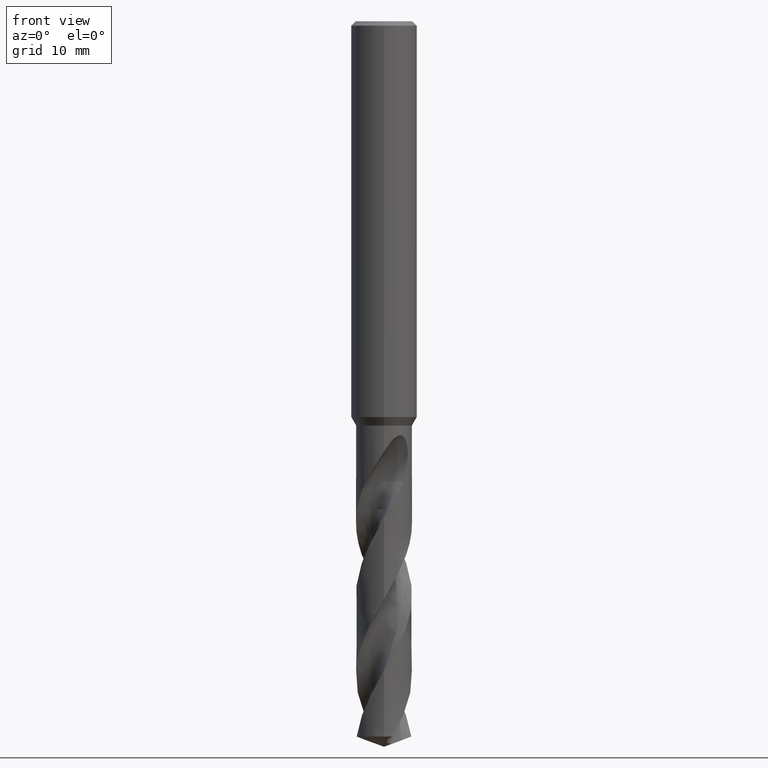
[diagram: clean part render]
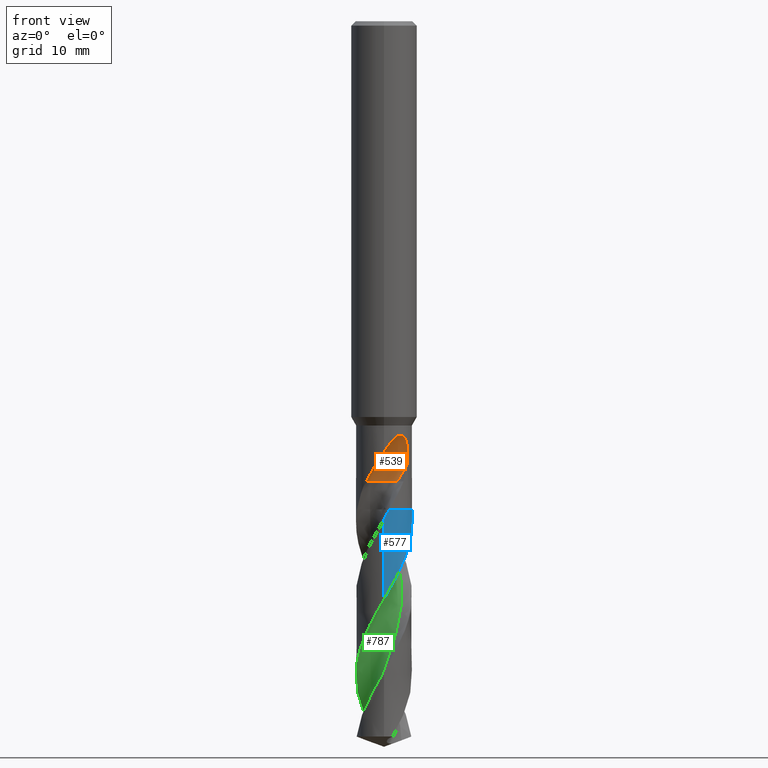
[diagram: same view with three faces highlighted in distinct colors, each labeled with its STEP entity id]
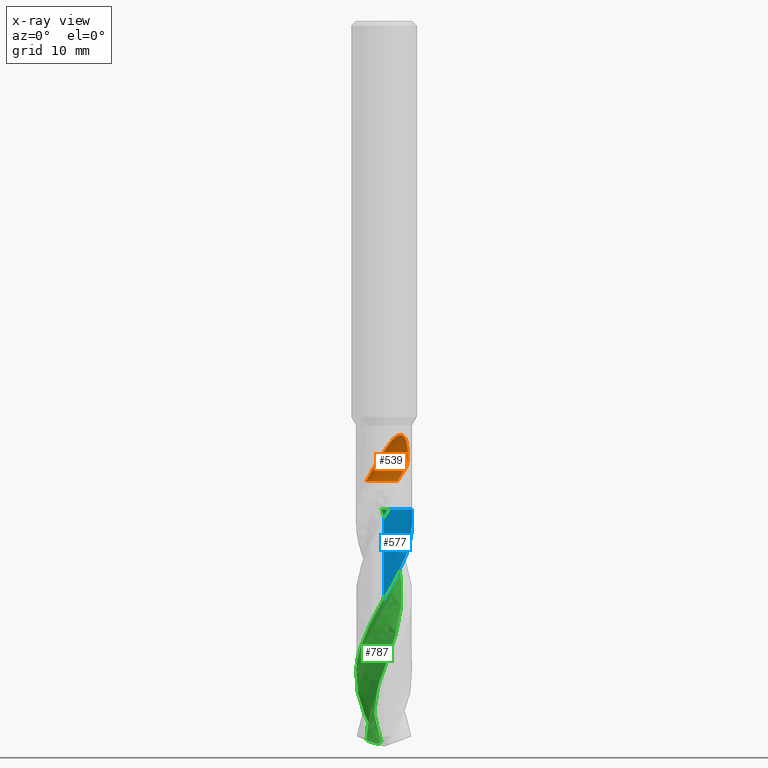
[diagram: x-ray of the same camera — body ghosted, the three highlighted faces saturated]
A machine part, front view with three faces highlighted in distinct colors.
The next image is the same camera in x-ray (body ghosted, the three faces saturated) — at least one of them is partly hidden behind the body in this view.
Their STEP definitions:

[orange] entity #539 — the highlighted face is a SurfaceOfRevolution surface.
#367=VERTEX_POINT('',#895);
#455=EDGE_CURVE('',#599,#635,#992,.T.);
#539=ADVANCED_FACE('',(#1085),#1086,.F.);
#565=EDGE_CURVE('',#367,#635,#1113,.T.);
#569=EDGE_CURVE('',#665,#599,#1118,.T.);
#599=VERTEX_POINT('',#1152);
#635=VERTEX_POINT('',#1193);
#659=EDGE_CURVE('',#763,#367,#1221,.T.);
#665=VERTEX_POINT('',#1227);
#761=EDGE_CURVE('',#763,#665,#1329,.T.);
#763=VERTEX_POINT('',#1331);
#895=CARTESIAN_POINT('',(7.56884150894619E-013,-2.55,-39.15000204322));
#992=CIRCLE('',#3668,11.0804127453489);
#1085=FACE_OUTER_BOUND('',#4221,.T.);
#1086=SURFACE_OF_REVOLUTION('',#4222,#4223);
#1113=B_SPLINE_CURVE_WITH_KNOTS('',3,(#4283,#4284,#4285,#4286,#4287,#4288,#4289,#4290,#4291,#4292,#4293,#4294,#4295,#4296,#4297,#4298,#4299,#4300,#4301,#4302,#4303,#4304,#4305,#4306,#4307,#4308,#4309,#4310),.UNSPECIFIED.,.F.,.F.,(4,2,2,2,2,2,2,2,2,2,2,2,2,4),(0.0,1.2493596128504,1.93153835635049,2.54942075450013,3.26725165442554,4.12953051732324,4.87688242765241,5.21555645378228,5.46308588244491,5.69732111728535,5.99446247790975,6.42919234259777,7.04721195838125,7.74999240025269),.UNSPECIFIED.);
#1118=CIRCLE('',#4316,1.7);
#1152=CARTESIAN_POINT('',(1.20208152794642,-1.26291847205358,-41.8606));
#1193=CARTESIAN_POINT('',(2.07478751640229,-1.48248330910713,-40.4642704184706));
#1221=B_SPLINE_CURVE_WITH_KNOTS('',3,(#5711,#5712,#5713,#5714,#5715,#5716,#5717,#5718,#5719,#5720,#5721,#5722,#5723,#5724,#5725,#5726,#5727,#5728,#5729,#5730,#5731,#5732,#5733,#5734,#5735,#5736,#5737,#5738),.UNSPECIFIED.,.F.,.F.,(4,2,2,2,2,2,2,2,2,2,2,2,2,4),(0.0,1.2493596128504,1.93153835635049,2.54942075450013,3.26725165442554,4.12953051732324,4.87688242765241,5.21555645378228,5.46308588244491,5.69732111728535,5.99446247790975,6.42919234259777,7.04721195838125,7.74999240025269),.UNSPECIFIED.);
#1227=CARTESIAN_POINT('',(0.269409738912672,-0.786472330421527,-41.8606));
#1329=CIRCLE('',#6816,1.7);
#1331=CARTESIAN_POINT('',(-1.62490083550806,-1.96524738258704,-41.8606));
#3668=AXIS2_PLACEMENT_3D('',#7456,#7457,#7458);
#4221=EDGE_LOOP('',(#7556,#7557,#7558,#7559,#7560));
#4222=(B_SPLINE_CURVE(3,(#7562,#7563,#7564,#7565,#7566,#7567,#7568,#7569,#7570),.UNSPECIFIED.,.F.,.F.)B_SPLINE_CURVE_WITH_KNOTS((4,1,3,1,4),(-2.85587209839975,-2.55247693377613,-2.24908176915251,-1.94568660452889,-1.64229143990528),.UNSPECIFIED.)RATIONAL_B_SPLINE_CURVE((1.09204862591699,1.03068287530566,0.969317124694336,1.03068287530566,1.09204862591699,1.03068287530566,0.969317124694336,1.03068287530566,1.09204862591699))BOUNDED_CURVE()REPRESENTATION_ITEM('')GEOMETRIC_REPRESENTATION_ITEM()CURVE());
#4223=AXIS1_PLACEMENT('',#7577,#7578);
#4283=CARTESIAN_POINT('',(-1.62490083550806,-1.96524738258704,-41.8606));
#4284=CARTESIAN_POINT('',(-1.45669338031003,-2.10432424227997,-41.505921060011));
#4285=CARTESIAN_POINT('',(-1.26329282268803,-2.22795392363681,-41.1752460080513));
#4286=CARTESIAN_POINT('',(-0.926059863963459,-2.3794879783411,-40.6228305933092));
#4287=CARTESIAN_POINT('',(-0.804707708838678,-2.4230785591664,-40.4284724289745));
#4288=CARTESIAN_POINT('',(-0.569785261369414,-2.4882262006282,-40.0522453289005));
#4289=CARTESIAN_POINT('',(-0.457263904156239,-2.5112427100234,-39.8721300689186));
#4290=CARTESIAN_POINT('',(-0.213702551379134,-2.5444612321252,-39.4839337875907));
#4291=CARTESIAN_POINT('',(-0.0806280975477646,-2.55226003480915,-39.2728141637524));
#4292=CARTESIAN_POINT('',(0.214896144172133,-2.54604382693197,-38.8211596554812));
#4293=CARTESIAN_POINT('',(0.390112134702442,-2.52681712314373,-38.5641633105317));
#4294=CARTESIAN_POINT('',(0.727993527751662,-2.44917046311251,-38.1403940501317));
#4295=CARTESIAN_POINT('',(0.914929811528088,-2.39001349986102,-37.9336112017254));
#4296=CARTESIAN_POINT('',(1.19785599497992,-2.25327402243575,-37.7399799554091));
#4297=CARTESIAN_POINT('',(1.29150639456485,-2.20165174678138,-37.6921259434389));
#4298=CARTESIAN_POINT('',(1.45560342999809,-2.09536020524699,-37.6553654798896));
#4299=CARTESIAN_POINT('',(1.52290884093069,-2.04695423733335,-37.6546790722435));
#4300=CARTESIAN_POINT('',(1.64826880519651,-1.94724804510427,-37.6868521317766));
#4301=CARTESIAN_POINT('',(1.70309499902958,-1.8990919432696,-37.7170172338095));
#4302=CARTESIAN_POINT('',(1.81466569523409,-1.7935616050469,-37.8114003700712));
#4303=CARTESIAN_POINT('',(1.86628334890514,-1.73887313285198,-37.8810853385635));
#4304=CARTESIAN_POINT('',(1.97201299416678,-1.61945684737322,-38.0719044253324));
#4305=CARTESIAN_POINT('',(2.0225496571708,-1.55442613573115,-38.213435799693));
#4306=CARTESIAN_POINT('',(2.11758198328291,-1.42384528135442,-38.6094248392793));
#4307=CARTESIAN_POINT('',(2.15193836814655,-1.3682241127332,-38.891442921608));
#4308=CARTESIAN_POINT('',(2.17390554000001,-1.33308696786573,-39.5656944377645));
#4309=CARTESIAN_POINT('',(2.15834036234748,-1.36554816342149,-39.9890449633595));
#4310=CARTESIAN_POINT('',(2.07478751640229,-1.48248330910713,-40.4642704184706));
#4316=AXIS2_PLACEMENT_3D('',#7618,#7619,#7620);
#5711=CARTESIAN_POINT('',(-1.62490083550806,-1.96524738258704,-41.8606));
#5712=CARTESIAN_POINT('',(-1.45669338031003,-2.10432424227997,-41.505921060011));
#5713=CARTESIAN_POINT('',(-1.26329282268803,-2.22795392363681,-41.1752460080513));
#5714=CARTESIAN_POINT('',(-0.926059863963459,-2.3794879783411,-40.6228305933092));
#5715=CARTESIAN_POINT('',(-0.804707708838678,-2.4230785591664,-40.4284724289745));
#5716=CARTESIAN_POINT('',(-0.569785261369414,-2.4882262006282,-40.0522453289005));
#5717=CARTESIAN_POINT('',(-0.457263904156239,-2.5112427100234,-39.8721300689186));
#5718=CARTESIAN_POINT('',(-0.213702551379134,-2.5444612321252,-39.4839337875907));
#5719=CARTESIAN_POINT('',(-0.0806280975477646,-2.55226003480915,-39.2728141637524));
#5720=CARTESIAN_POINT('',(0.214896144172133,-2.54604382693197,-38.8211596554812));
#5721=CARTESIAN_POINT('',(0.390112134702442,-2.52681712314373,-38.5641633105317));
#5722=CARTESIAN_POINT('',(0.727993527751662,-2.44917046311251,-38.1403940501317));
#5723=CARTESIAN_POINT('',(0.914929811528088,-2.39001349986102,-37.9336112017254));
#5724=CARTESIAN_POINT('',(1.19785599497992,-2.25327402243575,-37.7399799554091));
#5725=CARTESIAN_POINT('',(1.29150639456485,-2.20165174678138,-37.6921259434389));
#5726=CARTESIAN_POINT('',(1.45560342999809,-2.09536020524699,-37.6553654798896));
#5727=CARTESIAN_POINT('',(1.52290884093069,-2.04695423733335,-37.6546790722435));
#5728=CARTESIAN_POINT('',(1.64826880519651,-1.94724804510427,-37.6868521317766));
#5729=CARTESIAN_POINT('',(1.70309499902958,-1.8990919432696,-37.7170172338095));
#5730=CARTESIAN_POINT('',(1.81466569523409,-1.7935616050469,-37.8114003700712));
#5731=CARTESIAN_POINT('',(1.86628334890514,-1.73887313285198,-37.8810853385635));
#5732=CARTESIAN_POINT('',(1.97201299416678,-1.61945684737322,-38.0719044253324));
#5733=CARTESIAN_POINT('',(2.0225496571708,-1.55442613573115,-38.213435799693));
#5734=CARTESIAN_POINT('',(2.11758198328291,-1.42384528135442,-38.6094248392793));
#5735=CARTESIAN_POINT('',(2.15193836814655,-1.3682241127332,-38.891442921608));
#5736=CARTESIAN_POINT('',(2.17390554000001,-1.33308696786573,-39.5656944377645));
#5737=CARTESIAN_POINT('',(2.15834036234748,-1.36554816342149,-39.9890449633595));
#5738=CARTESIAN_POINT('',(2.07478751640229,-1.48248330910713,-40.4642704184706));
#6816=AXIS2_PLACEMENT_3D('',#7819,#7820,#7821);
#7456=CARTESIAN_POINT('',(0.864418177399673,-12.325,-42.4008613608748));
#7457=DIRECTION('',(0.847998304005088,0.0,-0.52999894000318));
#7458=DIRECTION('',(0.0535598122533608,0.994880693138896,0.0856956996053773));
#7556=ORIENTED_EDGE('',*,*,#659,.F.);
#7557=ORIENTED_EDGE('',*,*,#761,.T.);
#7558=ORIENTED_EDGE('',*,*,#569,.T.);
#7559=ORIENTED_EDGE('',*,*,#455,.T.);
#7560=ORIENTED_EDGE('',*,*,#565,.F.);
#7562=CARTESIAN_POINT('',(1.20208152794642,-1.26291847205358,-41.8606));
#7563=CARTESIAN_POINT('',(0.966185000177541,-1.02701682691481,-41.8606));
#7564=CARTESIAN_POINT('',(0.352498720875007,-0.692068478712858,-41.8606));
#7565=CARTESIAN_POINT('',(-0.342641017172516,-0.766781194863622,-41.8606));
#7566=CARTESIAN_POINT('',(-0.650836736161752,-0.894500248999258,-41.8606));
#7567=CARTESIAN_POINT('',(-0.959032455150988,-1.02221930313489,-41.8606));
#7568=CARTESIAN_POINT('',(-1.50325402054367,-1.46110896253569,-41.8606));
#7569=CARTESIAN_POINT('',(-1.70012780504999,-2.13196062895797,-41.8606));
#7570=CARTESIAN_POINT('',(-1.70001293763561,-2.46557229661675,-41.8606));
#7577=CARTESIAN_POINT('',(0.864418177399672,-12.325,-42.4008613608748));
#7578=DIRECTION('',(-0.847998304005088,0.0,0.52999894000318));
#7618=CARTESIAN_POINT('',(-1.30384053492459E-005,-2.46498696159465,-41.8606));
#7619=DIRECTION('',(-0.0,0.0,-1.0));
#7620=DIRECTION('',(-0.707099111494748,-0.707114450795158,0.0));
#7819=CARTESIAN_POINT('',(-1.30384053492459E-005,-2.46498696159465,-41.8606));
#7820=DIRECTION('',(-0.0,0.0,-1.0));
#7821=DIRECTION('',(-0.707099111494748,-0.707114450795158,0.0));

[blue] entity #577 — the highlighted conical surface has half-angle 0 deg.
#289=EDGE_CURVE('',#639,#779,#812,.T.);
#291=EDGE_CURVE('',#299,#317,#814,.T.);
#299=VERTEX_POINT('',#823);
#317=VERTEX_POINT('',#843);
#325=VERTEX_POINT('',#851);
#417=EDGE_CURVE('',#779,#679,#952,.T.);
#547=EDGE_CURVE('',#325,#679,#1094,.T.);
#577=ADVANCED_FACE('',(#1127),#1128,.T.);
#581=EDGE_CURVE('',#325,#299,#1133,.T.);
#591=EDGE_CURVE('',#317,#639,#1144,.T.);
#639=VERTEX_POINT('',#1197);
#679=VERTEX_POINT('',#1242);
#779=VERTEX_POINT('',#1348);
#812=B_SPLINE_CURVE_WITH_KNOTS('',3,(#1438,#1439,#1440,#1441),.UNSPECIFIED.,.F.,.F.,(4,4),(0.0,0.00790820010640688),.UNSPECIFIED.);
#814=B_SPLINE_CURVE_WITH_KNOTS('',3,(#1444,#1445,#1446,#1447),.UNSPECIFIED.,.F.,.F.,(4,4),(0.0,0.00897765199769266),.UNSPECIFIED.);
#823=CARTESIAN_POINT('',(2.45163694437292,0.701046672574818,-44.405));
#843=CARTESIAN_POINT('',(2.45083913037174,0.703830638036362,-44.4));
#851=CARTESIAN_POINT('',(-9.69274205119329E-011,-2.54993953751047,-52.5731450984842));
#952=B_SPLINE_CURVE_WITH_KNOTS('',3,(#3448,#3449,#3450,#3451,#3452,#3453,#3454,#3455,#3456,#3457,#3458,#3459,#3460,#3461,#3462,#3463,#3464,#3465,#3466,#3467,#3468,#3469,#3470,#3471,#3472,#3473,#3474,#3475,#3476,#3477,#3478,#3479,#3480,#3481,#3482,#3483,#3484,#3485,#3486,#3487,#3488,#3489,#3490,#3491,#3492,#3493,#3494,#3495,#3496,#3497,#3498,#3499,#3500,#3501,#3502,#3503,#3504,#3505),.UNSPECIFIED.,.F.,.F.,(4,2,2,2,2,2,2,2,2,2,2,2,2,2,2,2,2,2,2,2,2,2,2,2,2,2,2,2,4),(0.0,0.904595376413873,1.93838786452814,2.92163758847791,3.91194730893933,4.15071126309397,5.01063530921165,5.50711745622402,5.99645655956475,6.97608884762099,7.96485159785986,8.95029012703213,9.44091576661419,10.4734855355496,11.46155835114,12.4470108962846,12.9372804733509,13.9071458147678,14.8969134456873,15.8810176148369,16.8602019875054,17.7334736813849,18.1138178259916,19.5373381390503,20.0747924208409,21.0211814781129,21.7329142798097,22.7997396180121,23.8685175775835),.UNSPECIFIED.);
#1094=LINE('',#4254,#4255);
#1127=FACE_OUTER_BOUND('',#4327,.T.);
#1128=CONICAL_SURFACE('',#4328,2.54995,4.83749034052352E-006);
#1133=B_SPLINE_CURVE_WITH_KNOTS('',3,(#4334,#4335,#4336,#4337,#4338,#4339,#4340,#4341,#4342,#4343,#4344,#4345,#4346,#4347,#4348,#4349,#4350,#4351,#4352,#4353,#4354,#4355,#4356,#4357,#4358,#4359,#4360,#4361,#4362,#4363,#4364,#4365,#4366,#4367,#4368,#4369,#4370,#4371,#4372,#4373,#4374,#4375,#4376,#4377,#4378,#4379,#4380,#4381,#4382,#4383,#4384,#4385,#4386,#4387,#4388,#4389,#4390,#4391,#4392,#4393,#4394,#4395,#4396,#4397,#4398,#4399,#4400,#4401),.UNSPECIFIED.,.F.,.F.,(4,2,2,2,2,2,2,2,2,2,2,2,2,2,2,2,2,2,2,2,2,2,2,2,2,2,2,2,2,2,2,2,2,4),(0.0,0.973739436017821,2.32965119995241,2.54896821638103,4.15997327652881,4.19445713652408,5.06440210691963,5.50173351088864,6.37226912712226,7.24602667241369,7.95597861365113,8.83780110771078,9.20759198545636,9.70234542954898,10.5785328542333,11.4523910865963,12.3267805413204,13.2016514886626,14.077007179959,14.9529442700812,15.8293056978267,16.2683457697776,16.7039123791458,17.5798463122624,17.9819839106962,18.3572622239712,19.6511991951263,20.1965138166835,21.1555557530387,21.5151404272408,21.8294000183997,22.9342244846882,23.2096626156101,24.0334358124483),.UNSPECIFIED.);
#1144=CIRCLE('',#4869,2.5499);
#1197=CARTESIAN_POINT('',(0.494733133515938,-2.50144540947859,-44.4));
#1242=CARTESIAN_POINT('',(-9.61340102567172E-015,-2.54990417075244,-45.2621727685656));
#1348=CARTESIAN_POINT('',(0.491895978307675,-2.50200489206218,-44.4049999999999));
#1438=CARTESIAN_POINT('',(0.494733133515914,-2.50144540947861,-44.4));
#1439=CARTESIAN_POINT('',(0.493438454803094,-2.50170148086902,-44.402281903182));
#1440=CARTESIAN_POINT('',(0.492143578527356,-2.50195654687773,-44.404563806254));
#1441=CARTESIAN_POINT('',(0.490848505880163,-2.5022106072752,-44.4068457106341));
#1444=CARTESIAN_POINT('',(2.45207731946008,0.699504839900992,-44.4077686922695));
#1445=CARTESIAN_POINT('',(2.45166589178215,0.700947032258717,-44.4051790652776));
#1446=CARTESIAN_POINT('',(2.45125316212047,0.702388965545384,-44.4025895014555));
#1447=CARTESIAN_POINT('',(2.45083913037175,0.703830638036361,-44.4));
#3448=CARTESIAN_POINT('',(0.492301017395344,-2.50192522350578,-44.4042862558919));
#3449=CARTESIAN_POINT('',(0.344178322945214,-2.53107244669465,-44.6653064245363));
#3450=CARTESIAN_POINT('',(0.193929190380487,-2.5469757588407,-44.925824106508));
#3451=CARTESIAN_POINT('',(-0.128809494820265,-2.55246164496665,-45.4855873433756));
#3452=CARTESIAN_POINT('',(-0.30092794289411,-2.53795103824878,-45.7835310996031));
#3453=CARTESIAN_POINT('',(-0.631566782069647,-2.47589478541825,-46.3657358487592));
#3454=CARTESIAN_POINT('',(-0.789402950170166,-2.43017478560221,-46.6487402690111));
#3455=CARTESIAN_POINT('',(-1.09511162155849,-2.30868755433766,-47.218550773501));
#3456=CARTESIAN_POINT('',(-1.24227180941462,-2.23295870224512,-47.5037021797873));
#3457=CARTESIAN_POINT('',(-1.41458084201294,-2.12193826049186,-47.8584916154735));
#3458=CARTESIAN_POINT('',(-1.44753524434239,-2.09959594200604,-47.9273872511195));
#3459=CARTESIAN_POINT('',(-1.59669145628818,-1.9932918928437,-48.2446156116848));
#3460=CARTESIAN_POINT('',(-1.70621966216789,-1.90038429745669,-48.4927746103865));
#3461=CARTESIAN_POINT('',(-1.86574891243506,-1.74009581570366,-48.8844404323146));
#3462=CARTESIAN_POINT('',(-1.92126584662551,-1.67860100321907,-49.027680203242));
#3463=CARTESIAN_POINT('',(-2.0253915703389,-1.55131035799842,-49.3122825774456));
#3464=CARTESIAN_POINT('',(-2.07399443735755,-1.48570442363129,-49.4533816974097));
#3465=CARTESIAN_POINT('',(-2.21017931767544,-1.28214975318076,-49.8775933406426));
#3466=CARTESIAN_POINT('',(-2.28777049425431,-1.13795339585544,-50.1601237703828));
#3467=CARTESIAN_POINT('',(-2.41489551606074,-0.835239756758642,-50.7285202114503));
#3468=CARTESIAN_POINT('',(-2.46382894752502,-0.677395752658592,-51.0130907454363));
#3469=CARTESIAN_POINT('',(-2.53042245195366,-0.355122543059434,-51.5833067171389));
#3470=CARTESIAN_POINT('',(-2.54805651413339,-0.191347090399088,-51.8673099812889));
#3471=CARTESIAN_POINT('',(-2.55066076766428,0.0549086144958673,-52.2935231662921));
#3472=CARTESIAN_POINT('',(-2.54758460164812,0.136729119558556,-52.4350098178223));
#3473=CARTESIAN_POINT('',(-2.52584666762202,0.389804171668897,-52.8749414638961));
#3474=CARTESIAN_POINT('',(-2.49376578920328,0.559476491110245,-53.1727591732744));
#3475=CARTESIAN_POINT('',(-2.39796984435706,0.882685824834005,-53.7563394131764));
#3476=CARTESIAN_POINT('',(-2.33592839294119,1.03576208498919,-54.0407681854939));
#3477=CARTESIAN_POINT('',(-2.18344771171825,1.32732474259901,-54.6108889734833));
#3478=CARTESIAN_POINT('',(-2.09338114867479,1.46528014612376,-54.89493922413));
#3479=CARTESIAN_POINT('',(-1.93947981510207,1.65751942507556,-55.3211283474987));
#3480=CARTESIAN_POINT('',(-1.88532356191326,1.71886712620112,-55.4625400107683));
#3481=CARTESIAN_POINT('',(-1.71556941141989,1.89347844928116,-55.8843383954801));
#3482=CARTESIAN_POINT('',(-1.59200499273304,1.99849605400999,-56.164185882007));
#3483=CARTESIAN_POINT('',(-1.32387878641337,2.1856145680911,-56.7302550024671));
#3484=CARTESIAN_POINT('',(-1.17963603406594,2.26671592456579,-57.0151565522202));
#3485=CARTESIAN_POINT('',(-0.878452191238855,2.39949311697181,-57.5854705792976));
#3486=CARTESIAN_POINT('',(-0.722185425608949,2.45107062282796,-57.8692262719795));
#3487=CARTESIAN_POINT('',(-0.402572092098124,2.52328746594555,-58.4363317217144));
#3488=CARTESIAN_POINT('',(-0.240135043613622,2.5438833046822,-58.7185416060254));
#3489=CARTESIAN_POINT('',(0.0686434851790894,2.55320429856699,-59.2537894913909));
#3490=CARTESIAN_POINT('',(0.214377174217329,2.54512273047864,-59.5055917837756));
#3491=CARTESIAN_POINT('',(0.421534609977658,2.51569278047497,-59.8677009003464));
#3492=CARTESIAN_POINT('',(0.484012710504189,2.5044225962746,-59.9774672998032));
#3493=CARTESIAN_POINT('',(0.777982362528576,2.4399864638977,-60.49863364321));
#3494=CARTESIAN_POINT('',(1.00183297143736,2.35694838820673,-60.9084320010982));
#3495=CARTESIAN_POINT('',(1.28993890916687,2.20148121877151,-61.4749446306497));
#3496=CARTESIAN_POINT('',(1.36655725322697,2.15475569094775,-61.6300776653679));
#3497=CARTESIAN_POINT('',(1.57077515761114,2.01494596843945,-62.0589126377077));
#3498=CARTESIAN_POINT('',(1.69251092623528,1.91384153165527,-62.3319952396799));
#3499=CARTESIAN_POINT('',(1.88809131080235,1.71804155920873,-62.8111096431041));
#3500=CARTESIAN_POINT('',(1.96605529019701,1.62824461196166,-63.0163696958586));
#3501=CARTESIAN_POINT('',(2.14451497099304,1.39111715504038,-63.5303372863692));
#3502=CARTESIAN_POINT('',(2.23641709925202,1.23800223535392,-63.8378221862678));
#3503=CARTESIAN_POINT('',(2.38698107870052,0.914693297158209,-64.4548072614514));
#3504=CARTESIAN_POINT('',(2.44503618066964,0.745639627752323,-64.7628269882179));
#3505=CARTESIAN_POINT('',(2.48497970854248,0.572167674840251,-65.0718759026212));
#4254=CARTESIAN_POINT('',(3.13128794338096E-016,-2.54995,-54.7359379513106));
#4255=VECTOR('',#7579,1.0);
#4327=EDGE_LOOP('',(#7632,#7633,#7634,#7635,#7636,#7637));
#4328=AXIS2_PLACEMENT_3D('',#7638,#7639,#7640);
#4334=CARTESIAN_POINT('',(-0.781501621102612,2.42729380508705,-65.0718759026212));
#4335=CARTESIAN_POINT('',(-0.936654392305266,2.37733874633834,-64.7911907336946));
#4336=CARTESIAN_POINT('',(-1.08586653742181,2.31286871901481,-64.5083894878592));
#4337=CARTESIAN_POINT('',(-1.42391276727802,2.12728008139623,-63.8378065476343));
#4338=CARTESIAN_POINT('',(-1.60559432741941,1.99374198289367,-63.4529806769284));
#4339=CARTESIAN_POINT('',(-1.79373256505203,1.81281357722008,-63.0000320584943));
#4340=CARTESIAN_POINT('',(-1.81936453293249,1.78708784910183,-62.9369175222683));
#4341=CARTESIAN_POINT('',(-2.02896410744252,1.56752095492426,-62.4103172327299));
#4342=CARTESIAN_POINT('',(-2.18167503455075,1.3467563916689,-61.9548301492949));
#4343=CARTESIAN_POINT('',(-2.29981489373464,1.10149689923148,-61.4813319115324));
#4344=CARTESIAN_POINT('',(-2.30227058607833,1.09635484919248,-61.4714174525299));
#4345=CARTESIAN_POINT('',(-2.36638432647568,0.960936731697231,-61.2108325038003));
#4346=CARTESIAN_POINT('',(-2.41704031574375,0.825398705664276,-60.9615636863699));
#4347=CARTESIAN_POINT('',(-2.47557164802547,0.615819311843449,-60.5856044840309));
#4348=CARTESIAN_POINT('',(-2.49213039673548,0.544939918736955,-60.4599856520481));
#4349=CARTESIAN_POINT('',(-2.53250632546693,0.331267825005691,-60.0837191816829));
#4350=CARTESIAN_POINT('',(-2.54720835459705,0.187164163519624,-59.8322542288498));
#4351=CARTESIAN_POINT('',(-2.55203866507148,-0.102675763141762,-59.3304323985694));
#4352=CARTESIAN_POINT('',(-2.54205345356387,-0.247812119878028,-59.0804177029887));
#4353=CARTESIAN_POINT('',(-2.50165166158307,-0.507943367635334,-58.6248984175793));
#4354=CARTESIAN_POINT('',(-2.47549801354681,-0.622984790247666,-58.4199467108777));
#4355=CARTESIAN_POINT('',(-2.39932539744199,-0.875758096959759,-57.9622462134025));
#4356=CARTESIAN_POINT('',(-2.34512000472608,-1.0120316625414,-57.7101082801246));
#4357=CARTESIAN_POINT('',(-2.25187744696738,-1.19797093591371,-57.350538606899));
#4358=CARTESIAN_POINT('',(-2.22238341178183,-1.25183003119497,-57.2443713760112));
#4359=CARTESIAN_POINT('',(-2.14904672411644,-1.375001363626,-56.9958096555491));
#4360=CARTESIAN_POINT('',(-2.10375277936725,-1.44334854502031,-56.8531731426846));
#4361=CARTESIAN_POINT('',(-1.96915065311081,-1.62660737946356,-56.4589526090076));
#4362=CARTESIAN_POINT('',(-1.87318877868513,-1.73627540845624,-56.2083955010079));
#4363=CARTESIAN_POINT('',(-1.66361596880539,-1.9379745606551,-55.7056179688633));
#4364=CARTESIAN_POINT('',(-1.55068972973189,-2.02942912840731,-55.453732269428));
#4365=CARTESIAN_POINT('',(-1.31095462447957,-2.19194714773937,-54.9515789842074));
#4366=CARTESIAN_POINT('',(-1.18422788532857,-2.26294523468633,-54.7018090554772));
#4367=CARTESIAN_POINT('',(-0.919684266025417,-2.38275229518567,-54.1998214906068));
#4368=CARTESIAN_POINT('',(-0.782670323979267,-2.43117435378045,-53.9479328239939));
#4369=CARTESIAN_POINT('',(-0.502411806994512,-2.50415151123396,-53.4457848660414));
#4370=CARTESIAN_POINT('',(-0.359250356426526,-2.52867882239983,-53.196024708717));
#4371=CARTESIAN_POINT('',(-0.069871204089842,-2.55311790455676,-52.6940382171899));
#4372=CARTESIAN_POINT('',(0.0754590549387512,-2.55292987479412,-52.442147068802));
#4373=CARTESIAN_POINT('',(0.363980128410971,-2.52797772966208,-51.939997544937));
#4374=CARTESIAN_POINT('',(0.50709682079875,-2.50321652420232,-51.6902459198908));
#4375=CARTESIAN_POINT('',(0.71783162379828,-2.44789023171812,-51.313654104828));
#4376=CARTESIAN_POINT('',(0.787247947217329,-2.42644944283227,-51.1880811899281));
#4377=CARTESIAN_POINT('',(0.923334248698002,-2.37797834956189,-50.9374515638668));
#4378=CARTESIAN_POINT('',(0.990000091732948,-2.35100711903106,-50.8123405148182));
#4379=CARTESIAN_POINT('',(1.18739257366965,-2.2612414492276,-50.4363236776969));
#4380=CARTESIAN_POINT('',(1.31401687142072,-2.19010539509539,-50.1865650575724));
#4381=CARTESIAN_POINT('',(1.48914093426019,-2.07099583519396,-49.8204821498079));
#4382=CARTESIAN_POINT('',(1.54268590252056,-2.03141832762757,-49.7053879432416));
#4383=CARTESIAN_POINT('',(1.64297315963046,-1.9510518407317,-49.4825295160713));
#4384=CARTESIAN_POINT('',(1.68987528059989,-1.91056787865282,-49.3747263399553));
#4385=CARTESIAN_POINT('',(1.89171461690037,-1.72311126471347,-48.8965412104839));
#4386=CARTESIAN_POINT('',(2.02936861403163,-1.55867186939896,-48.5302338449936));
#4387=CARTESIAN_POINT('',(2.19368552885072,-1.30305028729606,-48.0038416564657));
#4388=CARTESIAN_POINT('',(2.23827681902959,-1.22485822099682,-47.8472901206139));
#4389=CARTESIAN_POINT('',(2.34961578553808,-1.00318458009612,-47.4169346222162));
#4390=CARTESIAN_POINT('',(2.40737442700591,-0.855415571522195,-47.1442943506009));
#4391=CARTESIAN_POINT('',(2.46746657051759,-0.645902395723534,-46.7674677357509));
#4392=CARTESIAN_POINT('',(2.48183399695397,-0.588272168035091,-46.6647677043769));
#4393=CARTESIAN_POINT('',(2.50494737869601,-0.479548711934263,-46.4720691118284));
#4394=CARTESIAN_POINT('',(2.51416396334329,-0.428594804554415,-46.3820475699122));
#4395=CARTESIAN_POINT('',(2.54873300779968,-0.197615006862006,-45.9766900398407));
#4396=CARTESIAN_POINT('',(2.55636021972133,-0.0152845407305094,-45.6641144849212));
#4397=CARTESIAN_POINT('',(2.54149613823825,0.211829446865782,-45.2702822969631));
#4398=CARTESIAN_POINT('',(2.53732330088687,0.257006804929261,-45.1917076259951));
#4399=CARTESIAN_POINT('',(2.51590917593722,0.436533821534429,-44.8778043423141));
#4400=CARTESIAN_POINT('',(2.489133465673,0.569933106300669,-44.6404569985964));
#4401=CARTESIAN_POINT('',(2.45162035553032,0.701104673448125,-44.4048958367487));
#4869=AXIS2_PLACEMENT_3D('',#7665,#7666,#7667);
#7579=DIRECTION('',(-5.92402140753638E-022,4.83749034050466E-006,0.999999999988299));
#7632=ORIENTED_EDGE('',*,*,#547,.F.);
#7633=ORIENTED_EDGE('',*,*,#581,.T.);
#7634=ORIENTED_EDGE('',*,*,#291,.T.);
#7635=ORIENTED_EDGE('',*,*,#591,.T.);
#7636=ORIENTED_EDGE('',*,*,#289,.T.);
#7637=ORIENTED_EDGE('',*,*,#417,.T.);
#7638=CARTESIAN_POINT('',(0.0,0.0,-54.7359379513106));
#7639=DIRECTION('',(0.0,-0.0,-1.0));
#7640=DIRECTION('',(0.0,1.0,0.0));
#7665=CARTESIAN_POINT('',(0.0,0.0,-44.4));
#7666=DIRECTION('',(0.0,0.0,-1.0));
#7667=DIRECTION('',(0.0,1.0,0.0));

[green] entity #787 — the highlighted face is a freeform B-spline surface patch.
#299=VERTEX_POINT('',#823);
#325=VERTEX_POINT('',#851);
#333=VERTEX_POINT('',#859);
#363=EDGE_CURVE('',#333,#379,#890,.T.);
#379=VERTEX_POINT('',#907);
#437=VERTEX_POINT('',#973);
#447=EDGE_CURVE('',#379,#325,#984,.T.);
#493=EDGE_CURVE('',#437,#333,#1033,.T.);
#581=EDGE_CURVE('',#325,#299,#1133,.T.);
#755=EDGE_CURVE('',#299,#437,#1323,.T.);
#787=ADVANCED_FACE('',(#1357),#1358,.F.);
#823=CARTESIAN_POINT('',(2.45163694437292,0.701046672574818,-44.405));
#851=CARTESIAN_POINT('',(-9.69274205119329E-011,-2.54993953751047,-52.5731450984842));
#859=CARTESIAN_POINT('',(-1.59616637994865,-0.170764390680774,-65.4157277089444));
#890=B_SPLINE_CURVE_WITH_KNOTS('',3,(#2110,#2111,#2112,#2113,#2114,#2115,#2116,#2117,#2118,#2119,#2120,#2121,#2122,#2123,#2124,#2125,#2126,#2127,#2128,#2129),.UNSPECIFIED.,.F.,.F.,(4,2,2,2,2,2,2,2,2,4),(0.0,1.0620686731207,1.78393141251343,2.46979322505624,3.23913797725353,4.07458475416835,5.01902752702197,6.07488703867134,6.70908507829239,7.34303042336844),.UNSPECIFIED.);
#907=CARTESIAN_POINT('',(-0.781501621102597,2.42729380508706,-65.0718759026212));
#973=CARTESIAN_POINT('',(-0.242113569617448,1.58547866104269,-44.405));
#984=B_SPLINE_CURVE_WITH_KNOTS('',3,(#3590,#3591,#3592,#3593,#3594,#3595,#3596,#3597,#3598,#3599,#3600,#3601,#3602,#3603,#3604,#3605,#3606,#3607,#3608,#3609,#3610,#3611,#3612,#3613,#3614,#3615,#3616,#3617,#3618,#3619,#3620,#3621,#3622,#3623,#3624,#3625,#3626,#3627,#3628,#3629,#3630,#3631,#3632,#3633,#3634,#3635,#3636,#3637,#3638,#3639,#3640,#3641,#3642,#3643,#3644,#3645,#3646,#3647,#3648,#3649,#3650,#3651,#3652,#3653,#3654,#3655,#3656,#3657),.UNSPECIFIED.,.F.,.F.,(4,2,2,2,2,2,2,2,2,2,2,2,2,2,2,2,2,2,2,2,2,2,2,2,2,2,2,2,2,2,2,2,2,4),(0.0,0.973739436017821,2.32965119995241,2.54896821638103,4.15997327652881,4.19445713652408,5.06440210691963,5.50173351088864,6.37226912712226,7.24602667241369,7.95597861365113,8.83780110771078,9.20759198545636,9.70234542954898,10.5785328542333,11.4523910865963,12.3267805413204,13.2016514886626,14.077007179959,14.9529442700812,15.8293056978267,16.2683457697776,16.7039123791458,17.5798463122624,17.9819839106962,18.3572622239712,19.6511991951263,20.1965138166835,21.1555557530387,21.5151404272408,21.8294000183997,22.9342244846882,23.2096626156101,24.0334358124483),.UNSPECIFIED.);
#1033=B_SPLINE_CURVE_WITH_KNOTS('',3,(#4070,#4071,#4072,#4073,#4074,#4075,#4076,#4077,#4078,#4079,#4080,#4081,#4082,#4083,#4084,#4085,#4086,#4087,#4088,#4089,#4090,#4091,#4092,#4093,#4094,#4095,#4096,#4097,#4098,#4099,#4100,#4101,#4102,#4103,#4104,#4105,#4106,#4107,#4108),.UNSPECIFIED.,.F.,.F.,(4,1,2,2,2,2,2,2,2,2,2,2,2,2,2,2,2,2,2,4),(0.0,0.48484074373811,0.96968148747622,1.93936297495244,2.90904446242866,3.87872594990488,5.81808892485732,7.75745189980976,9.6968148747622,11.6361778497146,13.5755408246671,15.5149037996195,17.454266774572,19.3936297495244,21.3329927244768,23.2723556994293,25.2117186743817,27.1510816493342,29.0904446242866,31.029807599239),.UNSPECIFIED.);
#1133=B_SPLINE_CURVE_WITH_KNOTS('',3,(#4334,#4335,#4336,#4337,#4338,#4339,#4340,#4341,#4342,#4343,#4344,#4345,#4346,#4347,#4348,#4349,#4350,#4351,#4352,#4353,#4354,#4355,#4356,#4357,#4358,#4359,#4360,#4361,#4362,#4363,#4364,#4365,#4366,#4367,#4368,#4369,#4370,#4371,#4372,#4373,#4374,#4375,#4376,#4377,#4378,#4379,#4380,#4381,#4382,#4383,#4384,#4385,#4386,#4387,#4388,#4389,#4390,#4391,#4392,#4393,#4394,#4395,#4396,#4397,#4398,#4399,#4400,#4401),.UNSPECIFIED.,.F.,.F.,(4,2,2,2,2,2,2,2,2,2,2,2,2,2,2,2,2,2,2,2,2,2,2,2,2,2,2,2,2,2,2,2,2,4),(0.0,0.973739436017821,2.32965119995241,2.54896821638103,4.15997327652881,4.19445713652408,5.06440210691963,5.50173351088864,6.37226912712226,7.24602667241369,7.95597861365113,8.83780110771078,9.20759198545636,9.70234542954898,10.5785328542333,11.4523910865963,12.3267805413204,13.2016514886626,14.077007179959,14.9529442700812,15.8293056978267,16.2683457697776,16.7039123791458,17.5798463122624,17.9819839106962,18.3572622239712,19.6511991951263,20.1965138166835,21.1555557530387,21.5151404272408,21.8294000183997,22.9342244846882,23.2096626156101,24.0334358124483),.UNSPECIFIED.);
#1323=B_SPLINE_CURVE_WITH_KNOTS('',3,(#6790,#6791,#6792,#6793,#6794,#6795,#6796,#6797,#6798,#6799,#6800,#6801,#6802,#6803,#6804,#6805,#6806,#6807,#6808,#6809),.UNSPECIFIED.,.F.,.F.,(4,2,2,2,2,2,2,2,2,4),(-5.35531806765965,-5.00114860710339,-4.64691808302809,-3.98253738823736,-3.31822643693531,-2.65423719746501,-1.99063438491092,-1.32725488938462,-0.66379863336662,-0.0),.UNSPECIFIED.);
#1357=FACE_OUTER_BOUND('',#6866,.T.);
#1358=B_SPLINE_SURFACE_WITH_KNOTS('',3,3,((#6867,#6868,#6869,#6870,#6871,#6872,#6873,#6874,#6875,#6876,#6877,#6878,#6879,#6880,#6881,#6882,#6883,#6884,#6885,#6886,#6887,#6888,#6889,#6890,#6891,#6892,#6893,#6894,#6895,#6896,#6897,#6898,#6899,#6900,#6901,#6902,#6903,#6904,#6905),(#6906,#6907,#6908,#6909,#6910,#6911,#6912,#6913,#6914,#6915,#6916,#6917,#6918,#6919,#6920,#6921,#6922,#6923,#6924,#6925,#6926,#6927,#6928,#6929,#6930,#6931,#6932,#6933,#6934,#6935,#6936,#6937,#6938,#6939,#6940,#6941,#6942,#6943,#6944),(#6945,#6946,#6947,#6948,#6949,#6950,#6951,#6952,#6953,#6954,#6955,#6956,#6957,#6958,#6959,#6960,#6961,#6962,#6963,#6964,#6965,#6966,#6967,#6968,#6969,#6970,#6971,#6972,#6973,#6974,#6975,#6976,#6977,#6978,#6979,#6980,#6981,#6982,#6983),(#6984,#6985,#6986,#6987,#6988,#6989,#6990,#6991,#6992,#6993,#6994,#6995,#6996,#6997,#6998,#6999,#7000,#7001,#7002,#7003,#7004,#7005,#7006,#7007,#7008,#7009,#7010,#7011,#7012,#7013,#7014,#7015,#7016,#7017,#7018,#7019,#7020,#7021,#7022),(#7023,#7024,#7025,#7026,#7027,#7028,#7029,#7030,#7031,#7032,#7033,#7034,#7035,#7036,#7037,#7038,#7039,#7040,#7041,#7042,#7043,#7044,#7045,#7046,#7047,#7048,#7049,#7050,#7051,#7052,#7053,#7054,#7055,#7056,#7057,#7058,#7059,#7060,#7061),(#7062,#7063,#7064,#7065,#7066,#7067,#7068,#7069,#7070,#7071,#7072,#7073,#7074,#7075,#7076,#7077,#7078,#7079,#7080,#7081,#7082,#7083,#7084,#7085,#7086,#7087,#7088,#7089,#7090,#7091,#7092,#7093,#7094,#7095,#7096,#7097,#7098,#7099,#7100),(#7101,#7102,#7103,#7104,#7105,#7106,#7107,#7108,#7109,#7110,#7111,#7112,#7113,#7114,#7115,#7116,#7117,#7118,#7119,#7120,#7121,#7122,#7123,#7124,#7125,#7126,#7127,#7128,#7129,#7130,#7131,#7132,#7133,#7134,#7135,#7136,#7137,#7138,#7139),(#7140,#7141,#7142,#7143,#7144,#7145,#7146,#7147,#7148,#7149,#7150,#7151,#7152,#7153,#7154,#7155,#7156,#7157,#7158,#7159,#7160,#7161,#7162,#7163,#7164,#7165,#7166,#7167,#7168,#7169,#7170,#7171,#7172,#7173,#7174,#7175,#7176,#7177,#7178),(#7179,#7180,#7181,#7182,#7183,#7184,#7185,#7186,#7187,#7188,#7189,#7190,#7191,#7192,#7193,#7194,#7195,#7196,#7197,#7198,#7199,#7200,#7201,#7202,#7203,#7204,#7205,#7206,#7207,#7208,#7209,#7210,#7211,#7212,#7213,#7214,#7215,#7216,#7217),(#7218,#7219,#7220,#7221,#7222,#7223,#7224,#7225,#7226,#7227,#7228,#7229,#7230,#7231,#7232,#7233,#7234,#7235,#7236,#7237,#7238,#7239,#7240,#7241,#7242,#7243,#7244,#7245,#7246,#7247,#7248,#7249,#7250,#7251,#7252,#7253,#7254,#7255,#7256),(#7257,#7258,#7259,#7260,#7261,#7262,#7263,#7264,#7265,#7266,#7267,#7268,#7269,#7270,#7271,#7272,#7273,#7274,#7275,#7276,#7277,#7278,#7279,#7280,#7281,#7282,#7283,#7284,#7285,#7286,#7287,#7288,#7289,#7290,#7291,#7292,#7293,#7294,#7295)),.UNSPECIFIED.,.F.,.F.,.F.,(4,1,1,1,1,1,1,1,4),(4,1,2,2,2,2,2,2,2,2,2,2,2,2,2,2,2,2,2,4),(-5.40881827744282E-017,0.392701793329559,0.785403586659118,1.17810537998868,1.57080717331824,1.96350896664779,2.35621075997735,2.74891255330691,3.14161434663647),(0.0,0.48484074373811,0.96968148747622,1.93936297495244,2.90904446242866,3.87872594990488,5.81808892485732,7.75745189980976,9.6968148747622,11.6361778497146,13.5755408246671,15.5149037996195,17.454266774572,19.3936297495244,21.3329927244768,23.2723556994293,25.2117186743817,27.1510816493342,29.0904446242866,31.029807599239),.UNSPECIFIED.);
#2110=CARTESIAN_POINT('',(-1.59616637994837,-0.170764390679963,-65.4157277089456));
#2111=CARTESIAN_POINT('',(-1.2825069178157,-0.0565674121131609,-65.5336641294498));
#2112=CARTESIAN_POINT('',(-1.01255394512088,0.111344898075752,-65.6382978359496));
#2113=CARTESIAN_POINT('',(-0.674262646273736,0.392576758214169,-65.7214715981587));
#2114=CARTESIAN_POINT('',(-0.569081238775424,0.504168665118251,-65.72794205178));
#2115=CARTESIAN_POINT('',(-0.404561957703376,0.734076901909238,-65.6987401159846));
#2116=CARTESIAN_POINT('',(-0.343686238659857,0.853411716516295,-65.6662691255711));
#2117=CARTESIAN_POINT('',(-0.259019331770564,1.12084598699751,-65.5824286746176));
#2118=CARTESIAN_POINT('',(-0.238831405064934,1.27601911156563,-65.5275368120328));
#2119=CARTESIAN_POINT('',(-0.265112088187837,1.61765717269978,-65.4033989230927));
#2120=CARTESIAN_POINT('',(-0.316286399860649,1.79063092494928,-65.3384088715528));
#2121=CARTESIAN_POINT('',(-0.490901373930403,2.13079909327542,-65.204385683416));
#2122=CARTESIAN_POINT('',(-0.621188628323476,2.29118559928918,-65.1368769584331));
#2123=CARTESIAN_POINT('',(-0.953557838020889,2.57338814730044,-65.0021086835936));
#2124=CARTESIAN_POINT('',(-1.1595663586692,2.68623983073969,-64.9368036329239));
#2125=CARTESIAN_POINT('',(-1.51526146869356,2.80254746392942,-64.8409773884125));
#2126=CARTESIAN_POINT('',(-1.65384982338396,2.83146071391163,-64.8072032434686));
#2127=CARTESIAN_POINT('',(-1.93540804128146,2.85936764877394,-64.7439423902152));
#2128=CARTESIAN_POINT('',(-2.07791352709668,2.85832888220335,-64.7145588528479));
#2129=CARTESIAN_POINT('',(-2.21940188817345,2.84240307816681,-64.6874343139216));
#3590=CARTESIAN_POINT('',(-0.781501621102612,2.42729380508705,-65.0718759026212));
#3591=CARTESIAN_POINT('',(-0.936654392305266,2.37733874633834,-64.7911907336946));
#3592=CARTESIAN_POINT('',(-1.08586653742181,2.31286871901481,-64.5083894878592));
#3593=CARTESIAN_POINT('',(-1.42391276727802,2.12728008139623,-63.8378065476343));
#3594=CARTESIAN_POINT('',(-1.60559432741941,1.99374198289367,-63.4529806769284));
#3595=CARTESIAN_POINT('',(-1.79373256505203,1.81281357722008,-63.0000320584943));
#3596=CARTESIAN_POINT('',(-1.81936453293249,1.78708784910183,-62.9369175222683));
#3597=CARTESIAN_POINT('',(-2.02896410744252,1.56752095492426,-62.4103172327299));
#3598=CARTESIAN_POINT('',(-2.18167503455075,1.3467563916689,-61.9548301492949));
#3599=CARTESIAN_POINT('',(-2.29981489373464,1.10149689923148,-61.4813319115324));
#3600=CARTESIAN_POINT('',(-2.30227058607833,1.09635484919248,-61.4714174525299));
#3601=CARTESIAN_POINT('',(-2.36638432647568,0.960936731697231,-61.2108325038003));
#3602=CARTESIAN_POINT('',(-2.41704031574375,0.825398705664276,-60.9615636863699));
#3603=CARTESIAN_POINT('',(-2.47557164802547,0.615819311843449,-60.5856044840309));
#3604=CARTESIAN_POINT('',(-2.49213039673548,0.544939918736955,-60.4599856520481));
#3605=CARTESIAN_POINT('',(-2.53250632546693,0.331267825005691,-60.0837191816829));
#3606=CARTESIAN_POINT('',(-2.54720835459705,0.187164163519624,-59.8322542288498));
#3607=CARTESIAN_POINT('',(-2.55203866507148,-0.102675763141762,-59.3304323985694));
#3608=CARTESIAN_POINT('',(-2.54205345356387,-0.247812119878028,-59.0804177029887));
#3609=CARTESIAN_POINT('',(-2.50165166158307,-0.507943367635334,-58.6248984175793));
#3610=CARTESIAN_POINT('',(-2.47549801354681,-0.622984790247666,-58.4199467108777));
#3611=CARTESIAN_POINT('',(-2.39932539744199,-0.875758096959759,-57.9622462134025));
#3612=CARTESIAN_POINT('',(-2.34512000472608,-1.0120316625414,-57.7101082801246));
#3613=CARTESIAN_POINT('',(-2.25187744696738,-1.19797093591371,-57.350538606899));
#3614=CARTESIAN_POINT('',(-2.22238341178183,-1.25183003119497,-57.2443713760112));
#3615=CARTESIAN_POINT('',(-2.14904672411644,-1.375001363626,-56.9958096555491));
#3616=CARTESIAN_POINT('',(-2.10375277936725,-1.44334854502031,-56.8531731426846));
#3617=CARTESIAN_POINT('',(-1.96915065311081,-1.62660737946356,-56.4589526090076));
#3618=CARTESIAN_POINT('',(-1.87318877868513,-1.73627540845624,-56.2083955010079));
#3619=CARTESIAN_POINT('',(-1.66361596880539,-1.9379745606551,-55.7056179688633));
#3620=CARTESIAN_POINT('',(-1.55068972973189,-2.02942912840731,-55.453732269428));
#3621=CARTESIAN_POINT('',(-1.31095462447957,-2.19194714773937,-54.9515789842074));
#3622=CARTESIAN_POINT('',(-1.18422788532857,-2.26294523468633,-54.7018090554772));
#3623=CARTESIAN_POINT('',(-0.919684266025417,-2.38275229518567,-54.1998214906068));
#3624=CARTESIAN_POINT('',(-0.782670323979267,-2.43117435378045,-53.9479328239939));
#3625=CARTESIAN_POINT('',(-0.502411806994512,-2.50415151123396,-53.4457848660414));
#3626=CARTESIAN_POINT('',(-0.359250356426526,-2.52867882239983,-53.196024708717));
#3627=CARTESIAN_POINT('',(-0.069871204089842,-2.55311790455676,-52.6940382171899));
#3628=CARTESIAN_POINT('',(0.0754590549387512,-2.55292987479412,-52.442147068802));
#3629=CARTESIAN_POINT('',(0.363980128410971,-2.52797772966208,-51.939997544937));
#3630=CARTESIAN_POINT('',(0.50709682079875,-2.50321652420232,-51.6902459198908));
#3631=CARTESIAN_POINT('',(0.71783162379828,-2.44789023171812,-51.313654104828));
#3632=CARTESIAN_POINT('',(0.787247947217329,-2.42644944283227,-51.1880811899281));
#3633=CARTESIAN_POINT('',(0.923334248698002,-2.37797834956189,-50.9374515638668));
#3634=CARTESIAN_POINT('',(0.990000091732948,-2.35100711903106,-50.8123405148182));
#3635=CARTESIAN_POINT('',(1.18739257366965,-2.2612414492276,-50.4363236776969));
#3636=CARTESIAN_POINT('',(1.31401687142072,-2.19010539509539,-50.1865650575724));
#3637=CARTESIAN_POINT('',(1.48914093426019,-2.07099583519396,-49.8204821498079));
#3638=CARTESIAN_POINT('',(1.54268590252056,-2.03141832762757,-49.7053879432416));
#3639=CARTESIAN_POINT('',(1.64297315963046,-1.9510518407317,-49.4825295160713));
#3640=CARTESIAN_POINT('',(1.68987528059989,-1.91056787865282,-49.3747263399553));
#3641=CARTESIAN_POINT('',(1.89171461690037,-1.72311126471347,-48.8965412104839));
#3642=CARTESIAN_POINT('',(2.02936861403163,-1.55867186939896,-48.5302338449936));
#3643=CARTESIAN_POINT('',(2.19368552885072,-1.30305028729606,-48.0038416564657));
#3644=CARTESIAN_POINT('',(2.23827681902959,-1.22485822099682,-47.8472901206139));
#3645=CARTESIAN_POINT('',(2.34961578553808,-1.00318458009612,-47.4169346222162));
#3646=CARTESIAN_POINT('',(2.40737442700591,-0.855415571522195,-47.1442943506009));
#3647=CARTESIAN_POINT('',(2.46746657051759,-0.645902395723534,-46.7674677357509));
#3648=CARTESIAN_POINT('',(2.48183399695397,-0.588272168035091,-46.6647677043769));
#3649=CARTESIAN_POINT('',(2.50494737869601,-0.479548711934263,-46.4720691118284));
#3650=CARTESIAN_POINT('',(2.51416396334329,-0.428594804554415,-46.3820475699122));
#3651=CARTESIAN_POINT('',(2.54873300779968,-0.197615006862006,-45.9766900398407));
#3652=CARTESIAN_POINT('',(2.55636021972133,-0.0152845407305094,-45.6641144849212));
#3653=CARTESIAN_POINT('',(2.54149613823825,0.211829446865782,-45.2702822969631));
#3654=CARTESIAN_POINT('',(2.53732330088687,0.257006804929261,-45.1917076259951));
#3655=CARTESIAN_POINT('',(2.51590917593722,0.436533821534429,-44.8778043423141));
#3656=CARTESIAN_POINT('',(2.489133465673,0.569933106300669,-44.6404569985964));
#3657=CARTESIAN_POINT('',(2.45162035553032,0.701104673448125,-44.4048958367487));
#4070=CARTESIAN_POINT('',(-1.20208152794642,1.26291847205358,-41.8606));
#4071=CARTESIAN_POINT('',(-1.09739445303325,1.25550580716042,-41.9861579881799));
#4072=CARTESIAN_POINT('',(-0.928693522374079,1.26171672017485,-42.2366870427564));
#4073=CARTESIAN_POINT('',(-0.841312773795062,1.30537923677177,-42.4869287759));
#4074=CARTESIAN_POINT('',(-0.764257376909588,1.40443948356391,-42.8649942060688));
#4075=CARTESIAN_POINT('',(-0.693090788458495,1.45644086088575,-43.1175450620944));
#4076=CARTESIAN_POINT('',(-0.526490526589466,1.52811098881026,-43.6209357479183));
#4077=CARTESIAN_POINT('',(-0.436648225083689,1.55328597884341,-43.8725066369897));
#4078=CARTESIAN_POINT('',(-0.252944255506712,1.58571232022825,-44.3746463553022));
#4079=CARTESIAN_POINT('',(-0.161632380357456,1.59659601305243,-44.6258615347617));
#4080=CARTESIAN_POINT('',(0.10873543825806,1.61622999891988,-45.3809803153235));
#4081=CARTESIAN_POINT('',(0.294951300385465,1.58728089370226,-45.884253911971));
#4082=CARTESIAN_POINT('',(0.644336010693836,1.48494791945964,-46.8900064781197));
#4083=CARTESIAN_POINT('',(0.809687445364446,1.39562235420791,-47.3929585746075));
#4084=CARTESIAN_POINT('',(1.10477054641913,1.18347327365056,-48.399108123056));
#4085=CARTESIAN_POINT('',(1.23063352600479,1.04366238668719,-48.9021554143837));
#4086=CARTESIAN_POINT('',(1.43747180483215,0.744703390578074,-49.9081867525485));
#4087=CARTESIAN_POINT('',(1.50924169378778,0.570872673715046,-50.4112125675203));
#4088=CARTESIAN_POINT('',(1.60389848784344,0.219873324281713,-51.4172784360523));
#4089=CARTESIAN_POINT('',(1.61323828396392,0.0320288836016001,-51.9203083175005));
#4090=CARTESIAN_POINT('',(1.58484152361121,-0.330380915375357,-52.9263688675946));
#4091=CARTESIAN_POINT('',(1.53070389686799,-0.510491043459822,-53.4293979116538));
#4092=CARTESIAN_POINT('',(1.38250429627648,-0.842423281841706,-54.4354556199209));
#4093=CARTESIAN_POINT('',(1.27112493976229,-0.993972564560244,-54.9384855958652));
#4094=CARTESIAN_POINT('',(1.02020137484531,-1.25702039002113,-55.9445417183525));
#4095=CARTESIAN_POINT('',(0.864471368056559,-1.36247349378554,-56.4475708485602));
#4096=CARTESIAN_POINT('',(0.539903702632439,-1.52621818993058,-57.4536325715392));
#4097=CARTESIAN_POINT('',(0.35783643745727,-1.57338085622426,-57.9566621942715));
#4098=CARTESIAN_POINT('',(-0.00282251474139353,-1.61890733519989,-58.962718185022));
#4099=CARTESIAN_POINT('',(-0.190153172906535,-1.60235682370044,-59.4657472484222));
#4100=CARTESIAN_POINT('',(-0.545216926783913,-1.52438325152713,-60.471825943243));
#4101=CARTESIAN_POINT('',(-0.716172778195591,-1.44591913842932,-60.9748532662041));
#4102=CARTESIAN_POINT('',(-1.02455688227253,-1.25358603412912,-61.980828923397));
#4103=CARTESIAN_POINT('',(-1.15938008969426,-1.1224787603666,-62.4838713172083));
#4104=CARTESIAN_POINT('',(-1.38499682602313,-0.836791605139366,-63.4901541823832));
#4105=CARTESIAN_POINT('',(-1.4680754423818,-0.668337370833699,-63.9931127498622));
#4106=CARTESIAN_POINT('',(-1.58928921341774,-0.328072982582048,-64.9985319767915));
#4107=CARTESIAN_POINT('',(-1.60853757951096,-0.138954131979242,-65.5016102702771));
#4108=CARTESIAN_POINT('',(-1.59756008224275,0.046602977553611,-66.0041632386649));
#4334=CARTESIAN_POINT('',(-0.781501621102612,2.42729380508705,-65.0718759026212));
#4335=CARTESIAN_POINT('',(-0.936654392305266,2.37733874633834,-64.7911907336946));
#4336=CARTESIAN_POINT('',(-1.08586653742181,2.31286871901481,-64.5083894878592));
#4337=CARTESIAN_POINT('',(-1.42391276727802,2.12728008139623,-63.8378065476343));
#4338=CARTESIAN_POINT('',(-1.60559432741941,1.99374198289367,-63.4529806769284));
#4339=CARTESIAN_POINT('',(-1.79373256505203,1.81281357722008,-63.0000320584943));
#4340=CARTESIAN_POINT('',(-1.81936453293249,1.78708784910183,-62.9369175222683));
#4341=CARTESIAN_POINT('',(-2.02896410744252,1.56752095492426,-62.4103172327299));
#4342=CARTESIAN_POINT('',(-2.18167503455075,1.3467563916689,-61.9548301492949));
#4343=CARTESIAN_POINT('',(-2.29981489373464,1.10149689923148,-61.4813319115324));
#4344=CARTESIAN_POINT('',(-2.30227058607833,1.09635484919248,-61.4714174525299));
#4345=CARTESIAN_POINT('',(-2.36638432647568,0.960936731697231,-61.2108325038003));
#4346=CARTESIAN_POINT('',(-2.41704031574375,0.825398705664276,-60.9615636863699));
#4347=CARTESIAN_POINT('',(-2.47557164802547,0.615819311843449,-60.5856044840309));
#4348=CARTESIAN_POINT('',(-2.49213039673548,0.544939918736955,-60.4599856520481));
#4349=CARTESIAN_POINT('',(-2.53250632546693,0.331267825005691,-60.0837191816829));
#4350=CARTESIAN_POINT('',(-2.54720835459705,0.187164163519624,-59.8322542288498));
#4351=CARTESIAN_POINT('',(-2.55203866507148,-0.102675763141762,-59.3304323985694));
#4352=CARTESIAN_POINT('',(-2.54205345356387,-0.247812119878028,-59.0804177029887));
#4353=CARTESIAN_POINT('',(-2.50165166158307,-0.507943367635334,-58.6248984175793));
#4354=CARTESIAN_POINT('',(-2.47549801354681,-0.622984790247666,-58.4199467108777));
#4355=CARTESIAN_POINT('',(-2.39932539744199,-0.875758096959759,-57.9622462134025));
#4356=CARTESIAN_POINT('',(-2.34512000472608,-1.0120316625414,-57.7101082801246));
#4357=CARTESIAN_POINT('',(-2.25187744696738,-1.19797093591371,-57.350538606899));
#4358=CARTESIAN_POINT('',(-2.22238341178183,-1.25183003119497,-57.2443713760112));
#4359=CARTESIAN_POINT('',(-2.14904672411644,-1.375001363626,-56.9958096555491));
#4360=CARTESIAN_POINT('',(-2.10375277936725,-1.44334854502031,-56.8531731426846));
#4361=CARTESIAN_POINT('',(-1.96915065311081,-1.62660737946356,-56.4589526090076));
#4362=CARTESIAN_POINT('',(-1.87318877868513,-1.73627540845624,-56.2083955010079));
#4363=CARTESIAN_POINT('',(-1.66361596880539,-1.9379745606551,-55.7056179688633));
#4364=CARTESIAN_POINT('',(-1.55068972973189,-2.02942912840731,-55.453732269428));
#4365=CARTESIAN_POINT('',(-1.31095462447957,-2.19194714773937,-54.9515789842074));
#4366=CARTESIAN_POINT('',(-1.18422788532857,-2.26294523468633,-54.7018090554772));
#4367=CARTESIAN_POINT('',(-0.919684266025417,-2.38275229518567,-54.1998214906068));
#4368=CARTESIAN_POINT('',(-0.782670323979267,-2.43117435378045,-53.9479328239939));
#4369=CARTESIAN_POINT('',(-0.502411806994512,-2.50415151123396,-53.4457848660414));
#4370=CARTESIAN_POINT('',(-0.359250356426526,-2.52867882239983,-53.196024708717));
#4371=CARTESIAN_POINT('',(-0.069871204089842,-2.55311790455676,-52.6940382171899));
#4372=CARTESIAN_POINT('',(0.0754590549387512,-2.55292987479412,-52.442147068802));
#4373=CARTESIAN_POINT('',(0.363980128410971,-2.52797772966208,-51.939997544937));
#4374=CARTESIAN_POINT('',(0.50709682079875,-2.50321652420232,-51.6902459198908));
#4375=CARTESIAN_POINT('',(0.71783162379828,-2.44789023171812,-51.313654104828));
#4376=CARTESIAN_POINT('',(0.787247947217329,-2.42644944283227,-51.1880811899281));
#4377=CARTESIAN_POINT('',(0.923334248698002,-2.37797834956189,-50.9374515638668));
#4378=CARTESIAN_POINT('',(0.990000091732948,-2.35100711903106,-50.8123405148182));
#4379=CARTESIAN_POINT('',(1.18739257366965,-2.2612414492276,-50.4363236776969));
#4380=CARTESIAN_POINT('',(1.31401687142072,-2.19010539509539,-50.1865650575724));
#4381=CARTESIAN_POINT('',(1.48914093426019,-2.07099583519396,-49.8204821498079));
#4382=CARTESIAN_POINT('',(1.54268590252056,-2.03141832762757,-49.7053879432416));
#4383=CARTESIAN_POINT('',(1.64297315963046,-1.9510518407317,-49.4825295160713));
#4384=CARTESIAN_POINT('',(1.68987528059989,-1.91056787865282,-49.3747263399553));
#4385=CARTESIAN_POINT('',(1.89171461690037,-1.72311126471347,-48.8965412104839));
#4386=CARTESIAN_POINT('',(2.02936861403163,-1.55867186939896,-48.5302338449936));
#4387=CARTESIAN_POINT('',(2.19368552885072,-1.30305028729606,-48.0038416564657));
#4388=CARTESIAN_POINT('',(2.23827681902959,-1.22485822099682,-47.8472901206139));
#4389=CARTESIAN_POINT('',(2.34961578553808,-1.00318458009612,-47.4169346222162));
#4390=CARTESIAN_POINT('',(2.40737442700591,-0.855415571522195,-47.1442943506009));
#4391=CARTESIAN_POINT('',(2.46746657051759,-0.645902395723534,-46.7674677357509));
#4392=CARTESIAN_POINT('',(2.48183399695397,-0.588272168035091,-46.6647677043769));
#4393=CARTESIAN_POINT('',(2.50494737869601,-0.479548711934263,-46.4720691118284));
#4394=CARTESIAN_POINT('',(2.51416396334329,-0.428594804554415,-46.3820475699122));
#4395=CARTESIAN_POINT('',(2.54873300779968,-0.197615006862006,-45.9766900398407));
#4396=CARTESIAN_POINT('',(2.55636021972133,-0.0152845407305094,-45.6641144849212));
#4397=CARTESIAN_POINT('',(2.54149613823825,0.211829446865782,-45.2702822969631));
#4398=CARTESIAN_POINT('',(2.53732330088687,0.257006804929261,-45.1917076259951));
#4399=CARTESIAN_POINT('',(2.51590917593722,0.436533821534429,-44.8778043423141));
#4400=CARTESIAN_POINT('',(2.489133465673,0.569933106300669,-44.6404569985964));
#4401=CARTESIAN_POINT('',(2.45162035553032,0.701104673448125,-44.4048958367487));
#6790=CARTESIAN_POINT('',(3.03657411036897,2.48246067338888,-44.405));
#6791=CARTESIAN_POINT('',(3.06769384602085,2.36857881402883,-44.405));
#6792=CARTESIAN_POINT('',(3.08686146469802,2.25176339988125,-44.405));
#6793=CARTESIAN_POINT('',(3.10068067259049,2.01603291211961,-44.405));
#6794=CARTESIAN_POINT('',(3.09529055007008,1.89775724089043,-44.405));
#6795=CARTESIAN_POINT('',(3.04468253792928,1.56200976026687,-44.405));
#6796=CARTESIAN_POINT('',(2.96920800962931,1.35155850319279,-44.405));
#6797=CARTESIAN_POINT('',(2.74186594627503,0.971454858266463,-44.405));
#6798=CARTESIAN_POINT('',(2.59217258245929,0.80541987734409,-44.405));
#6799=CARTESIAN_POINT('',(2.23766708494079,0.54014178687009,-44.405));
#6800=CARTESIAN_POINT('',(2.03625995305394,0.443394527907779,-44.4049999999999));
#6801=CARTESIAN_POINT('',(1.60782652336659,0.332582288146823,-44.4049999999999));
#6802=CARTESIAN_POINT('',(1.38490684396434,0.319527956438241,-44.405));
#6803=CARTESIAN_POINT('',(0.94667986643104,0.379598362718488,-44.405));
#6804=CARTESIAN_POINT('',(0.735566857220822,0.452119301267795,-44.405));
#6805=CARTESIAN_POINT('',(0.352991407212026,0.674025637633608,-44.405));
#6806=CARTESIAN_POINT('',(0.185204317414934,0.821290900664781,-44.405));
#6807=CARTESIAN_POINT('',(-0.0845533770386179,1.17194985041324,-44.405));
#6808=CARTESIAN_POINT('',(-0.183901594348755,1.37200711230683,-44.405));
#6809=CARTESIAN_POINT('',(-0.242113569617453,1.5854786610427,-44.405));
#6866=EDGE_LOOP('',(#7848,#7849,#7850,#7851,#7852));
#6867=CARTESIAN_POINT('',(1.20208152794642,3.66708152794642,-41.8606));
#6868=CARTESIAN_POINT('',(1.30349138101385,3.66294608213439,-41.9862422635474));
#6869=CARTESIAN_POINT('',(1.50852161293324,3.63393677331782,-42.2387676661621));
#6870=CARTESIAN_POINT('',(1.71337716424821,3.55195051408445,-42.4920427460695));
#6871=CARTESIAN_POINT('',(2.01186078911098,3.38112895662532,-42.8687000090635));
#6872=CARTESIAN_POINT('',(2.19955465118841,3.25401348248367,-43.1189245227413));
#6873=CARTESIAN_POINT('',(2.55407104208126,2.98027596158837,-43.6214531383877));
#6874=CARTESIAN_POINT('',(2.72012064470767,2.83011296306287,-43.8729403910005));
#6875=CARTESIAN_POINT('',(3.02552181228476,2.50609801925724,-44.3769905943455));
#6876=CARTESIAN_POINT('',(3.16408669384434,2.33035878119049,-44.628831345414));
#6877=CARTESIAN_POINT('',(3.5281877822512,1.76645157307641,-45.382719535055));
#6878=CARTESIAN_POINT('',(3.70920611409306,1.35191583872799,-45.8854829777772));
#6879=CARTESIAN_POINT('',(3.91630453241499,0.481600812299769,-46.8918891174901));
#6880=CARTESIAN_POINT('',(3.94813143071852,0.030616169563522,-47.3950031658703));
#6881=CARTESIAN_POINT('',(3.85116632788341,-0.85866681614713,-48.4009594256309));
#6882=CARTESIAN_POINT('',(3.73002429787826,-1.29429721951031,-48.903969419026));
#6883=CARTESIAN_POINT('',(3.34067260187198,-2.09972775268707,-49.9100594507125));
#6884=CARTESIAN_POINT('',(3.08052183400278,-2.46953248434963,-50.4130928193347));
#6885=CARTESIAN_POINT('',(2.44378709707616,-3.09788565728126,-51.4191438216553));
#6886=CARTESIAN_POINT('',(2.07475442853537,-3.35913883109585,-51.9221728212514));
#6887=CARTESIAN_POINT('',(1.26423288618522,-3.73775210176843,-52.9282298636687));
#6888=CARTESIAN_POINT('',(0.828977238764015,-3.86020808280583,-53.4312597217525));
#6889=CARTESIAN_POINT('',(-0.0615641295693968,-3.94526771587903,-54.4373199963154));
#6890=CARTESIAN_POINT('',(-0.512683435718697,-3.91476419030396,-54.9403489471673));
#6891=CARTESIAN_POINT('',(-1.3802218112718,-3.69647057817027,-55.9464106694114));
#6892=CARTESIAN_POINT('',(-1.79502898207068,-3.5165520608674,-56.4494401070354));
#6893=CARTESIAN_POINT('',(-2.53924209049942,-3.02014270644842,-57.4554968187327));
#6894=CARTESIAN_POINT('',(-2.86976933318261,-2.71161287069444,-57.9585274114222));
#6895=CARTESIAN_POINT('',(-3.40457253286236,-1.9944876888434,-58.9645858928623));
#6896=CARTESIAN_POINT('',(-3.61257009555661,-1.59301762591955,-59.4676107699854));
#6897=CARTESIAN_POINT('',(-3.87609360911204,-0.738102061726109,-60.473660851687));
#6898=CARTESIAN_POINT('',(-3.93754069393617,-0.290132556700374,-60.9767109827951));
#6899=CARTESIAN_POINT('',(-3.89925423303863,0.603594950381508,-61.9828060261193));
#6900=CARTESIAN_POINT('',(-3.80695778472295,1.04612544669751,-62.4857458424195));
#6901=CARTESIAN_POINT('',(-3.47197164581853,1.87558777838338,-63.4916954081419));
#6902=CARTESIAN_POINT('',(-3.23665667772898,2.26213654776372,-63.9950201461653));
#6903=CARTESIAN_POINT('',(-2.64009653091144,2.92942761886629,-65.001042943783));
#6904=CARTESIAN_POINT('',(-2.29031978122729,3.21332628102084,-65.5030510193266));
#6905=CARTESIAN_POINT('',(-1.90320118412064,3.43283692938004,-66.0059349555905));
#6906=CARTESIAN_POINT('',(1.35942855742924,3.50972217661457,-41.8606));
#6907=CARTESIAN_POINT('',(1.46105291410976,3.50580121797466,-41.9862484444172));
#6908=CARTESIAN_POINT('',(1.66377792147787,3.47441425059251,-42.2389202592531));
#6909=CARTESIAN_POINT('',(1.86040891436461,3.38473921880621,-42.4924178047704));
#6910=CARTESIAN_POINT('',(2.14122834065788,3.19942600203509,-42.8689717932662));
#6911=CARTESIAN_POINT('',(2.31719887047524,3.06468435341981,-43.1190256921117));
#6912=CARTESIAN_POINT('',(2.64910777622979,2.77864856462025,-43.6214910841967));
#6913=CARTESIAN_POINT('',(2.80368128072068,2.62349822507038,-43.8729722027192));
#6914=CARTESIAN_POINT('',(3.08575283013506,2.29151905914263,-44.3771625208101));
#6915=CARTESIAN_POINT('',(3.21210297874282,2.1126875771185,-44.6290491518197));
#6916=CARTESIAN_POINT('',(3.53801101021891,1.54264702403191,-45.3828470889249));
#6917=CARTESIAN_POINT('',(3.69379262226722,1.12845244802663,-45.8855731234865));
#6918=CARTESIAN_POINT('',(3.85062670840688,0.267452092828678,-46.8920271844343));
#6919=CARTESIAN_POINT('',(3.85878324442299,-0.174792382179292,-47.3951531158917));
#6920=CARTESIAN_POINT('',(3.71750055956682,-1.03841395625411,-48.4010952007074));
#6921=CARTESIAN_POINT('',(3.57699769255462,-1.45787704500276,-48.9041024609921));
#6922=CARTESIAN_POINT('',(3.15449881979298,-2.22428545795643,-49.9101967917606));
#6923=CARTESIAN_POINT('',(2.88152235535958,-2.57236538022337,-50.413230713118));
#6924=CARTESIAN_POINT('',(2.22663661647891,-3.15284803546684,-51.4192806331523));
#6925=CARTESIAN_POINT('',(1.85280030299005,-3.38933643476831,-51.9223095707324));
#6926=CARTESIAN_POINT('',(1.04122026203463,-3.71675936454162,-52.9283663425781));
#6927=CARTESIAN_POINT('',(0.60973907888618,-3.81427121398032,-53.4313962709374));
#6928=CARTESIAN_POINT('',(-0.264642483946424,-3.85074498317831,-54.4374567258814));
#6929=CARTESIAN_POINT('',(-0.703845501931202,-3.79800585720167,-54.9404856003674));
#6930=CARTESIAN_POINT('',(-1.53987834499428,-3.53935586117889,-55.9465477435006));
#6931=CARTESIAN_POINT('',(-1.93600718641281,-3.34248140681858,-56.4495771951852));
#6932=CARTESIAN_POINT('',(-2.6370119360829,-2.81860784105345,-57.4556335461204));
#6933=CARTESIAN_POINT('',(-2.94425861687571,-2.5003621784995,-57.9586641776422));
#6934=CARTESIAN_POINT('',(-3.4291455822388,-1.77184116766942,-58.9647228995903));
#6935=CARTESIAN_POINT('',(-3.61194999856623,-1.36901944958267,-59.4677474136857));
#6936=CARTESIAN_POINT('',(-3.82462266340828,-0.520097226474963,-60.4737954510686));
#6937=CARTESIAN_POINT('',(-3.86188579678873,-0.0792960575094635,-60.9768472164644));
#6938=CARTESIAN_POINT('',(-3.77769374666446,0.791739936923859,-61.9829510383335));
#6939=CARTESIAN_POINT('',(-3.66501515476982,1.21940458401947,-62.4858833339644));
#6940=CARTESIAN_POINT('',(-3.29444023115103,2.01217390954504,-63.4918084279896));
#6941=CARTESIAN_POINT('',(-3.04485171811665,2.37788314004758,-63.9951600409428));
#6942=CARTESIAN_POINT('',(-2.42688941870652,2.99819479092808,-65.0012270920471));
#6943=CARTESIAN_POINT('',(-2.0709102725147,3.25794049554441,-65.5031566658446));
#6944=CARTESIAN_POINT('',(-1.68157037848671,3.45283248510972,-66.0060648934245));
#6945=CARTESIAN_POINT('',(1.61148014498556,3.13249845960361,-41.8605999999999));
#6946=CARTESIAN_POINT('',(1.71361871136717,3.12892108375038,-41.986258609634));
#6947=CARTESIAN_POINT('',(1.91078872540111,3.09369652569258,-42.2391712256953));
#6948=CARTESIAN_POINT('',(2.0879166498582,2.99191759474551,-42.493034656538));
#6949=CARTESIAN_POINT('',(2.32765222265909,2.78465167661192,-42.8694187896166));
#6950=CARTESIAN_POINT('',(2.47714832490377,2.63932292048119,-43.1191920846299));
#6951=CARTESIAN_POINT('',(2.75896120024785,2.3376859841005,-43.6215534914615));
#6952=CARTESIAN_POINT('',(2.88860404443321,2.17712670673868,-43.873024523118));
#6953=CARTESIAN_POINT('',(3.12085912008787,1.83849975260696,-44.3774452842799));
#6954=CARTESIAN_POINT('',(3.22155525617625,1.65834241723156,-44.6294073720831));
#6955=CARTESIAN_POINT('',(3.46865426144131,1.09122582726829,-45.3830568766849));
#6956=CARTESIAN_POINT('',(3.57410871468672,0.687749172315502,-45.8857213634744));
#6957=CARTESIAN_POINT('',(3.63413941735196,-0.134637444785607,-46.8922542809488));
#6958=CARTESIAN_POINT('',(3.59844084977868,-0.549992417592643,-47.3953997342155));
#6959=CARTESIAN_POINT('',(3.37874627485992,-1.34467843922746,-48.4013185083852));
#6960=CARTESIAN_POINT('',(3.2059590570944,-1.72411460353835,-48.9043212665501));
#6961=CARTESIAN_POINT('',(2.73269749797791,-2.39931374475245,-49.9104226794073));
#6962=CARTESIAN_POINT('',(2.44271421614216,-2.69885286735893,-50.4134575185109));
#6963=CARTESIAN_POINT('',(1.77057051819005,-3.17639666659941,-51.4195056297088));
#6964=CARTESIAN_POINT('',(1.39697700496077,-3.36145569270369,-51.9225344538665));
#6965=CARTESIAN_POINT('',(0.603636978211518,-3.58609856811574,-52.9285908323755));
#6966=CARTESIAN_POINT('',(0.189622534667352,-3.63523360289334,-53.4316208417657));
#6967=CARTESIAN_POINT('',(-0.633125370794605,-3.58098233003657,-54.4376816108122));
#6968=CARTESIAN_POINT('',(-1.0396585202272,-3.4885200150406,-54.9407103673153));
#6969=CARTESIAN_POINT('',(-1.79664526829607,-3.16170288766844,-55.946773170014));
#6970=CARTESIAN_POINT('',(-2.14868255153131,-2.93835139620585,-56.449802672327));
#6971=CARTESIAN_POINT('',(-2.75236723039742,-2.37674339215326,-57.4558584075855));
#6972=CARTESIAN_POINT('',(-3.00919894488309,-2.04832800238676,-57.958889193523));
#6973=CARTESIAN_POINT('',(-3.38974277179734,-1.31687006578287,-58.964948152279));
#6974=CARTESIAN_POINT('',(-3.52163397814973,-0.92136400675398,-59.4679722240377));
#6975=CARTESIAN_POINT('',(-3.63500971029996,-0.104647511962267,-60.4740167484753));
#6976=CARTESIAN_POINT('',(-3.62676569979461,0.312202904191708,-60.9770713140007));
#6977=CARTESIAN_POINT('',(-3.45980541997704,1.11961042914471,-61.9831894999482));
#6978=CARTESIAN_POINT('',(-3.31228273211884,1.50944438117736,-62.4861094215392));
#6979=CARTESIAN_POINT('',(-2.8851367365244,2.21469074150418,-63.4919943511768));
#6980=CARTESIAN_POINT('',(-2.61529426838219,2.53305359717374,-63.9953901030376));
#6981=CARTESIAN_POINT('',(-1.97321870335662,3.05091532983231,-65.0015299766595));
#6982=CARTESIAN_POINT('',(-1.61444217665748,3.25989881092834,-65.5033304681939));
#6983=CARTESIAN_POINT('',(-1.23045057440991,3.40468051563209,-66.0062785994106));
#6984=CARTESIAN_POINT('',(1.74426010673492,2.46500067907774,-41.8605999999998));
#6985=CARTESIAN_POINT('',(1.84730856898942,2.46160430147969,-41.9862649557899));
#6986=CARTESIAN_POINT('',(2.03457672495306,2.42425000883279,-42.2393278941945));
#6987=CARTESIAN_POINT('',(2.17772692259703,2.31689119071441,-42.4934197324157));
#6988=CARTESIAN_POINT('',(2.34792074481406,2.10278482408783,-42.8696978327423));
#6989=CARTESIAN_POINT('',(2.4546473305822,1.95798101951422,-43.1192959562932));
#6990=CARTESIAN_POINT('',(2.65807455686152,1.66347977029748,-43.62159245051));
#6991=CARTESIAN_POINT('',(2.7500601667282,1.50973561824468,-43.8730571840811));
#6992=CARTESIAN_POINT('',(2.90945681168973,1.19049248163999,-44.3776218030049));
#6993=CARTESIAN_POINT('',(2.97383713393662,1.02322426732542,-44.6296309980727));
#6994=CARTESIAN_POINT('',(3.11339055143311,0.505400840281296,-45.3831878326245));
#6995=CARTESIAN_POINT('',(3.15524763028958,0.145669008496823,-45.8858139159042));
#6996=CARTESIAN_POINT('',(3.10328169044287,-0.567631301514836,-46.8923960363486));
#6997=CARTESIAN_POINT('',(3.02223888218877,-0.920544065128704,-47.3955536953321));
#6998=CARTESIAN_POINT('',(2.73344339993853,-1.57467741791855,-48.4014579036057));
#6999=CARTESIAN_POINT('',(2.5388898253103,-1.88010599123948,-48.9044578526005));
#7000=CARTESIAN_POINT('',(2.0476335793121,-2.39975473026323,-49.9105636978463));
#7001=CARTESIAN_POINT('',(1.7619450010654,-2.62225673502435,-50.4135990890584));
#7002=CARTESIAN_POINT('',(1.12497532962851,-2.94722718574351,-51.4196461013589));
#7003=CARTESIAN_POINT('',(0.781241529924763,-3.06114793643197,-51.9226748477987));
#7004=CARTESIAN_POINT('',(0.0721821798978326,-3.15381529316215,-52.9287309643039));
#7005=CARTESIAN_POINT('',(-0.289853670222365,-3.1459301731358,-53.4317610442531));
#7006=CARTESIAN_POINT('',(-0.988959748330647,-2.99558051036059,-54.4378219858939));
#7007=CARTESIAN_POINT('',(-1.32741143021092,-2.86681879763454,-54.940850672744));
#7008=CARTESIAN_POINT('',(-1.93571402132931,-2.49090326948647,-55.9469139026687));
#7009=CARTESIAN_POINT('',(-2.21144412406332,-2.25616729284928,-56.4499434195159));
#7010=CARTESIAN_POINT('',(-2.65858814006308,-1.69812881254685,-57.4559987890878));
#7011=CARTESIAN_POINT('',(-2.83971013555864,-1.38455975796339,-57.9590296376748));
#7012=CARTESIAN_POINT('',(-3.07395539412984,-0.708929945712328,-58.9650887930944));
#7013=CARTESIAN_POINT('',(-3.13948390385359,-0.352789809866054,-59.468112552545));
#7014=CARTESIAN_POINT('',(-3.13372854841031,0.362289949400544,-60.4741549075053));
#7015=CARTESIAN_POINT('',(-3.07616370973678,0.719822712573491,-60.9772111889009));
#7016=CARTESIAN_POINT('',(-2.83101834352172,1.39153205982719,-61.9833383825357));
#7017=CARTESIAN_POINT('',(-2.65692092768499,1.70893282704343,-62.4862505823381));
#7018=CARTESIAN_POINT('',(-2.20161408986158,2.26040339974486,-63.4921103925061));
#7019=CARTESIAN_POINT('',(-1.93088033859206,2.50152052560771,-63.9955337309003));
#7020=CARTESIAN_POINT('',(-1.31419705382569,2.86355126911459,-65.0017190464826));
#7021=CARTESIAN_POINT('',(-0.980683875666079,3.00057582789855,-65.5034389710712));
#7022=CARTESIAN_POINT('',(-0.632870601951451,3.07897825287071,-66.0064120076621));
#7023=CARTESIAN_POINT('',(1.61149064396106,1.79750081016051,-41.8606));
#7024=CARTESIAN_POINT('',(1.71544900477771,1.79392344828108,-41.9862614316573));
#7025=CARTESIAN_POINT('',(1.89275398474066,1.75839087381842,-42.23924089376));
#7026=CARTESIAN_POINT('',(2.00237820194973,1.65887943888069,-42.4932058935768));
#7027=CARTESIAN_POINT('',(2.10570582596066,1.46506606200782,-42.8695428759031));
#7028=CARTESIAN_POINT('',(2.17311921743762,1.33711467855398,-43.1192382732301));
#7029=CARTESIAN_POINT('',(2.30685832156415,1.07920304745677,-43.6215708174188));
#7030=CARTESIAN_POINT('',(2.36666125993341,0.946166155975552,-43.8730390463791));
#7031=CARTESIAN_POINT('',(2.4661635789546,0.672713103827712,-44.3775237799162));
#7032=CARTESIAN_POINT('',(2.50192503871978,0.53125034047454,-44.6295068148985));
#7033=CARTESIAN_POINT('',(2.56098309076379,0.100124093570075,-45.3831151109689));
#7034=CARTESIAN_POINT('',(2.56082444258463,-0.194854983214225,-45.88576252894));
#7035=CARTESIAN_POINT('',(2.44713301193788,-0.764513312296981,-46.8923173084698));
#7036=CARTESIAN_POINT('',(2.34809338314101,-1.04238448017736,-47.3954681994984));
#7037=CARTESIAN_POINT('',(2.04924455469792,-1.54022027817213,-48.401380494025));
#7038=CARTESIAN_POINT('',(1.86290317769007,-1.76894514724718,-48.9043820042304));
#7039=CARTESIAN_POINT('',(1.41454895186128,-2.1379978969844,-49.9104853880525));
#7040=CARTESIAN_POINT('',(1.16230917251305,-2.29097048405483,-50.4135204743756));
#7041=CARTESIAN_POINT('',(0.616223690484013,-2.48844228933358,-51.4195680935471));
#7042=CARTESIAN_POINT('',(0.327300248624141,-2.54806679741267,-51.9225968956976));
#7043=CARTESIAN_POINT('',(-0.253388831234596,-2.55105783154043,-52.9286531359586));
#7044=CARTESIAN_POINT('',(-0.545581964343052,-2.51038447470795,-53.4316831808905));
#7045=CARTESIAN_POINT('',(-1.0936825261021,-2.31856755429098,-54.4377440400926));
#7046=CARTESIAN_POINT('',(-1.35534392973406,-2.18232341255065,-54.9407727630988));
#7047=CARTESIAN_POINT('',(-1.80749115717914,-1.81794624678218,-55.9468357474179));
#7048=CARTESIAN_POINT('',(-2.00836601588894,-1.60189406203094,-56.4498652670763));
#7049=CARTESIAN_POINT('',(-2.31225146360632,-1.10705928289441,-57.4559208263183));
#7050=CARTESIAN_POINT('',(-2.42910835694532,-0.836179472320641,-57.9589516618675));
#7051=CARTESIAN_POINT('',(-2.54955614578131,-0.268114458912661,-58.9650106779711));
#7052=CARTESIAN_POINT('',(-2.56883835955728,0.0262602816464413,-59.468034630911));
#7053=CARTESIAN_POINT('',(-2.49191528305345,0.601850261922963,-60.4740781805973));
#7054=CARTESIAN_POINT('',(-2.41148401165615,0.885706335828759,-60.977133510861));
#7055=CARTESIAN_POINT('',(-2.14603489636066,1.40212673457891,-61.9832557089703));
#7056=CARTESIAN_POINT('',(-1.97510480970481,1.6424382539451,-62.486172175102));
#7057=CARTESIAN_POINT('',(-1.55262859465303,2.04106188881471,-63.4920459713269));
#7058=CARTESIAN_POINT('',(-1.31063224023863,2.21047229832741,-63.9954539588165));
#7059=CARTESIAN_POINT('',(-0.77704261197493,2.43825143379,-65.0016140662781));
#7060=CARTESIAN_POINT('',(-0.494407437774795,2.51846254468858,-65.5033787111097));
#7061=CARTESIAN_POINT('',(-0.205420924916461,2.54938352728844,-66.0063379239496));
#7062=CARTESIAN_POINT('',(1.2333849793632,1.23162104232202,-41.8606));
#7063=CARTESIAN_POINT('',(1.33811471567735,1.22752826923735,-41.9862485741576));
#7064=CARTESIAN_POINT('',(1.50691202555867,1.19749151838978,-42.2389234693586));
#7065=CARTESIAN_POINT('',(1.58856610530611,1.11806003011318,-42.4924256955761));
#7066=CARTESIAN_POINT('',(1.63788299392076,0.968583612671803,-42.8689775100232));
#7067=CARTESIAN_POINT('',(1.67542467465992,0.871246462420685,-43.119027820972));
#7068=CARTESIAN_POINT('',(1.75878270957405,0.6738078587296,-43.6214918819871));
#7069=CARTESIAN_POINT('',(1.79677713283454,0.572217826347706,-43.8729728711412));
#7070=CARTESIAN_POINT('',(1.85846771307686,0.363989915434189,-44.3771661385527));
#7071=CARTESIAN_POINT('',(1.87766429082987,0.257320222878204,-44.6290537309303));
#7072=CARTESIAN_POINT('',(1.89553204961492,-0.0629038500096779,-45.382849778383));
#7073=CARTESIAN_POINT('',(1.88133592985522,-0.281980407306176,-45.8855750116542));
#7074=CARTESIAN_POINT('',(1.76558742916036,-0.695309565030191,-46.8920300973134));
#7075=CARTESIAN_POINT('',(1.67863828362795,-0.896964315578183,-47.3951562625943));
#7076=CARTESIAN_POINT('',(1.43031424025012,-1.24655287426134,-48.401098064975));
#7077=CARTESIAN_POINT('',(1.28091335504869,-1.40755553756937,-48.9041052676798));
#7078=CARTESIAN_POINT('',(0.929826326527524,-1.65389388872052,-49.9101996732866));
#7079=CARTESIAN_POINT('',(0.735097089664915,-1.75543013042234,-50.4132336313614));
#7080=CARTESIAN_POINT('',(0.321769486323665,-1.86988877128678,-51.4192834940546));
#7081=CARTESIAN_POINT('',(0.104262546053398,-1.90032529822191,-51.9223124374348));
#7082=CARTESIAN_POINT('',(-0.323510142154896,-1.86959178833427,-52.9283692239465));
#7083=CARTESIAN_POINT('',(-0.5386295016573,-1.82535389635134,-53.4313991336695));
#7084=CARTESIAN_POINT('',(-0.931350393869735,-1.65301395394631,-54.4374596122795));
#7085=CARTESIAN_POINT('',(-1.11920349642157,-1.53924350206272,-54.94048848451));
#7086=CARTESIAN_POINT('',(-1.43149770524568,-1.24528481829057,-55.9465506179256));
#7087=CARTESIAN_POINT('',(-1.57036544060694,-1.07514023519083,-56.4495800853017));
#7088=CARTESIAN_POINT('',(-1.76608454818756,-0.693521002561877,-57.4556364164304));
#7089=CARTESIAN_POINT('',(-1.83990486225536,-0.486674207237302,-57.9586670945353));
#7090=CARTESIAN_POINT('',(-1.89638114459393,-0.061534685854568,-58.9647257422307));
#7091=CARTESIAN_POINT('',(-1.89657414009294,0.158078536280259,-59.4677502966086));
#7092=CARTESIAN_POINT('',(-1.80728149853898,0.577562046945094,-60.4737982744521));
#7093=CARTESIAN_POINT('',(-1.73391945173043,0.784599148161607,-60.976850102325));
#7094=CARTESIAN_POINT('',(-1.50913901254684,1.14978149183994,-61.9829540692191));
#7095=CARTESIAN_POINT('',(-1.37063610370149,1.32008399292938,-62.4858862147553));
#7096=CARTESIAN_POINT('',(-1.03698376918031,1.590059423574,-63.4918108173564));
#7097=CARTESIAN_POINT('',(-0.848978416534646,1.70421896431729,-63.9951629857138));
#7098=CARTESIAN_POINT('',(-0.443533381534331,1.83976476040348,-65.0012309643691));
#7099=CARTESIAN_POINT('',(-0.229645046071286,1.88695733958026,-65.5031589076062));
#7100=CARTESIAN_POINT('',(-0.0131777689216819,1.89652343418854,-66.0060676270019));
#7101=CARTESIAN_POINT('',(0.667507057559666,0.853512614929571,-41.8606000000001));
#7102=CARTESIAN_POINT('',(0.772752210357501,0.848648469855926,-41.9862283411382));
#7103=CARTESIAN_POINT('',(0.935792588717395,0.826944950358615,-42.2384239468941));
#7104=CARTESIAN_POINT('',(0.999290631579044,0.776768938040049,-42.491197917209));
#7105=CARTESIAN_POINT('',(1.01567500578547,0.688923461228926,-42.8680878098993));
#7106=CARTESIAN_POINT('',(1.03733421633741,0.631301548435264,-43.1186966361247));
#7107=CARTESIAN_POINT('',(1.09728840332478,0.509012790382278,-43.6213676648616));
#7108=CARTESIAN_POINT('',(1.12716865516935,0.44482165187027,-43.872868734749));
#7109=CARTESIAN_POINT('',(1.17888666740561,0.311323860955042,-44.3766033256491));
#7110=CARTESIAN_POINT('',(1.19609422722175,0.243137863825293,-44.6283407312752));
#7111=CARTESIAN_POINT('',(1.21834769487585,0.0411368673462154,-45.382432217423));
#7112=CARTESIAN_POINT('',(1.220229467757,-0.102443022217922,-45.8852799311982));
#7113=CARTESIAN_POINT('',(1.16240549438038,-0.370555851243204,-46.8915781098175));
#7114=CARTESIAN_POINT('',(1.11579344023558,-0.506422773029933,-47.3946653964862));
#7115=CARTESIAN_POINT('',(0.970880273955012,-0.738384017735943,-48.4006535926578));
#7116=CARTESIAN_POINT('',(0.881524226101655,-0.850956197971531,-48.9036697427445));
#7117=CARTESIAN_POINT('',(0.667261348879461,-1.02114416335425,-49.9097500830311));
#7118=CARTESIAN_POINT('',(0.545348811999864,-1.09716794852785,-50.4127822026253));
#7119=CARTESIAN_POINT('',(0.286441305690174,-1.18573708248327,-51.4188356583961));
#7120=CARTESIAN_POINT('',(0.146084359068674,-1.2165375512689,-51.9218648110187));
#7121=CARTESIAN_POINT('',(-0.127506278983507,-1.21316560880422,-52.9279224206671));
#7122=CARTESIAN_POINT('',(-0.270054753433396,-1.19512956839768,-53.4309521444499));
#7123=CARTESIAN_POINT('',(-0.526677276705917,-1.10024558012686,-54.4370120069447));
#7124=CARTESIAN_POINT('',(-0.654940853769045,-1.03548348219791,-54.9400411130144));
#7125=CARTESIAN_POINT('',(-0.864976047475149,-0.860102689268108,-55.9461019265473));
#7126=CARTESIAN_POINT('',(-0.964124928838978,-0.756100391045851,-56.4491312935435));
#7127=CARTESIAN_POINT('',(-1.10323748468363,-0.520472293860796,-57.4551888564205));
#7128=CARTESIAN_POINT('',(-1.16180176538854,-0.389253708661113,-57.9582192568477));
#7129=CARTESIAN_POINT('',(-1.21387171890402,-0.120640940825422,-58.9642773675597));
#7130=CARTESIAN_POINT('',(-1.22503877934689,0.0225965553277222,-59.4673029092205));
#7131=CARTESIAN_POINT('',(-1.18405789787953,0.293123006232783,-60.4733577311533));
#7132=CARTESIAN_POINT('',(-1.14662449425524,0.431894018271377,-60.9764040891426));
#7133=CARTESIAN_POINT('',(-1.01729364275854,0.672914124942007,-61.9824794069352));
#7134=CARTESIAN_POINT('',(-0.935540956445527,0.79094622578085,-62.4854361885173));
#7135=CARTESIAN_POINT('',(-0.733182922671932,0.976057978337324,-63.4914407793771));
#7136=CARTESIAN_POINT('',(-0.616202430970326,1.0598340548782,-63.9947050420032));
#7137=CARTESIAN_POINT('',(-0.364443816114712,1.1592066620623,-65.0006281335393));
#7138=CARTESIAN_POINT('',(-0.226704917136121,1.20220247274738,-65.5028130244586));
#7139=CARTESIAN_POINT('',(-0.0854088107615893,1.21979135949875,-66.0056422676372));
#7140=CARTESIAN_POINT('',(7.83687134026101E-006,0.720739893218722,-41.8606));
#7141=CARTESIAN_POINT('',(0.105433978616334,0.714965849272698,-41.986203812645));
#7142=CARTESIAN_POINT('',(0.26634461671322,0.703164294988585,-42.2378183748694));
#7143=CARTESIAN_POINT('',(0.324264852499945,0.686965347493442,-42.4897094800396));
#7144=CARTESIAN_POINT('',(0.333808679407837,0.668661907900951,-42.8670092243774));
#7145=CARTESIAN_POINT('',(0.355992655314722,0.65380986941894,-43.1182951386558));
#7146=CARTESIAN_POINT('',(0.423083286769609,0.609906742918648,-43.6212170778417));
#7147=CARTESIAN_POINT('',(0.459779039338517,0.583372810759232,-43.8727424898841));
#7148=CARTESIAN_POINT('',(0.53088190414199,0.52273297796349,-44.3759210268902));
#7149=CARTESIAN_POINT('',(0.560979125287476,0.490862431186623,-44.6274763608931));
#7150=CARTESIAN_POINT('',(0.632526613038064,0.396406767953,-45.3819260073313));
#7151=CARTESIAN_POINT('',(0.678153892961453,0.316423859669163,-45.8849222179219));
#7152=CARTESIAN_POINT('',(0.729417442449187,0.160306346446147,-46.8910301515078));
#7153=CARTESIAN_POINT('',(0.745248061522875,0.0697829326106258,-47.3940703250967));
#7154=CARTESIAN_POINT('',(0.740888250684333,-0.0930788703500798,-48.4001147518832));
#7155=CARTESIAN_POINT('',(0.725540015745466,-0.183885489470498,-48.9031417708939));
#7156=CARTESIAN_POINT('',(0.666827679940409,-0.336080441907345,-49.909205028425));
#7157=CARTESIAN_POINT('',(0.621952193882022,-0.416399758574804,-50.4122349415001));
#7158=CARTESIAN_POINT('',(0.515617611795944,-0.540144531566632,-51.4182927399575));
#7159=CARTESIAN_POINT('',(0.446398603894099,-0.600805466785704,-51.9213221464691));
#7160=CARTESIAN_POINT('',(0.30478254516561,-0.681715585432356,-52.9273807667656));
#7161=CARTESIAN_POINT('',(0.219253661187629,-0.715658736404828,-53.430410261982));
#7162=CARTESIAN_POINT('',(0.0587281627752248,-0.744417557444684,-54.4364693711012));
#7163=CARTESIAN_POINT('',(-0.0332367444679977,-0.747737293578153,-54.93949878848));
#7164=CARTESIAN_POINT('',(-0.194175146120948,-0.721041147886959,-55.9455579527307));
#7165=CARTESIAN_POINT('',(-0.281940360005131,-0.693346116375336,-56.44858725699));
#7166=CARTESIAN_POINT('',(-0.424624106564315,-0.614258612668657,-57.4546462443973));
#7167=CARTESIAN_POINT('',(-0.498035523665362,-0.55874956047131,-57.9576763972429));
#7168=CARTESIAN_POINT('',(-0.605935157780848,-0.43643471573016,-58.9637337475973));
#7169=CARTESIAN_POINT('',(-0.656468835376087,-0.359559478227518,-59.4667605475539));
#7170=CARTESIAN_POINT('',(-0.717125925011751,-0.208163002737955,-60.4728236531267));
#7171=CARTESIAN_POINT('',(-0.739010695892172,-0.118712163695434,-60.9758633862963));
#7172=CARTESIAN_POINT('',(-0.745378802374276,0.0441243579754163,-61.981903973552));
#7173=CARTESIAN_POINT('',(-0.736059568487887,0.135582483507137,-62.4848905788611));
#7174=CARTESIAN_POINT('',(-0.687477605022001,0.292534977070662,-63.4909922239582));
#7175=CARTESIAN_POINT('',(-0.647742801757582,0.37542067176343,-63.9941498927884));
#7176=CARTESIAN_POINT('',(-0.55181474781728,0.500187349095236,-64.9998973042111));
#7177=CARTESIAN_POINT('',(-0.486034674941761,0.568447078209553,-65.5023936731188));
#7178=CARTESIAN_POINT('',(-0.411117379181702,0.622215031488182,-66.0051266038491));
#7179=CARTESIAN_POINT('',(-0.667498459663865,0.853508728464158,-41.8606));
#7180=CARTESIAN_POINT('',(-0.562253300469671,0.846824776273508,-41.9861787224636));
#7181=CARTESIAN_POINT('',(-0.399521091695787,0.844986527110543,-42.2371989408064));
#7182=CARTESIAN_POINT('',(-0.333751635429198,0.862313876570728,-42.4881869712741));
#7183=CARTESIAN_POINT('',(-0.303915688272631,0.910877161958106,-42.8659059488645));
#7184=CARTESIAN_POINT('',(-0.264879984890192,0.935338813139213,-43.1178844524203));
#7185=CARTESIAN_POINT('',(-0.161199704231198,0.961124560364058,-43.6210630418701));
#7186=CARTESIAN_POINT('',(-0.103796637851279,0.966773675576111,-43.8726133532155));
#7187=CARTESIAN_POINT('',(0.0130968871082558,0.96602869780006,-44.375223111632));
#7188=CARTESIAN_POINT('',(0.0689999373272989,0.962777185269275,-44.62659220198));
#7189=CARTESIAN_POINT('',(0.227244777457476,0.948818010528507,-45.3814082142334));
#7190=CARTESIAN_POINT('',(0.337625249669438,0.910851444920231,-45.8845563008557));
#7191=CARTESIAN_POINT('',(0.532531970286965,0.81646026129506,-46.8904696653364));
#7192=CARTESIAN_POINT('',(0.623404806558628,0.7439339750322,-47.3934616118574));
#7193=CARTESIAN_POINT('',(0.775343875186236,0.591126054879565,-48.399563596669));
#7194=CARTESIAN_POINT('',(0.83670003968425,0.492107384780846,-48.9026017151839));
#7195=CARTESIAN_POINT('',(0.928585125462483,0.297010422329131,-49.9086474951222));
#7196=CARTESIAN_POINT('',(0.953239756365145,0.183242197567758,-50.4116751658888));
#7197=CARTESIAN_POINT('',(0.974405173015892,-0.0313872214307521,-51.4177373808016));
#7198=CARTESIAN_POINT('',(0.959483028093932,-0.146858852127335,-51.9207670441194));
#7199=CARTESIAN_POINT('',(0.907544425215751,-0.35614012009152,-52.9268267296214));
#7200=CARTESIAN_POINT('',(0.854804251020964,-0.459926515654184,-53.429855975636));
#7201=CARTESIAN_POINT('',(0.73574676569012,-0.639692066792388,-54.435914313523));
#7202=CARTESIAN_POINT('',(0.651264559972679,-0.719802733182745,-54.9389440427938));
#7203=CARTESIAN_POINT('',(0.478788109725051,-0.849263349516535,-55.9450015337046));
#7204=CARTESIAN_POINT('',(0.372339137013885,-0.896424274263715,-56.4480307506914));
#7205=CARTESIAN_POINT('',(0.166451519024818,-0.960596746145078,-57.4540912277397));
#7206=CARTESIAN_POINT('',(0.0503506541214956,-0.96935348136331,-57.9571211260504));
#7207=CARTESIAN_POINT('',(-0.165114420725398,-0.960837384458543,-58.9631776687128));
#7208=CARTESIAN_POINT('',(-0.277413906638791,-0.930209013111622,-59.466205735621));
#7209=CARTESIAN_POINT('',(-0.477561810326268,-0.849981259114149,-60.4722773846788));
#7210=CARTESIAN_POINT('',(-0.57312385427587,-0.783397241438195,-60.9753103256974));
#7211=CARTESIAN_POINT('',(-0.734782230002434,-0.640865035866309,-61.9813153485422));
#7212=CARTESIAN_POINT('',(-0.802552914264321,-0.546239786974082,-62.484332501832));
#7213=CARTESIAN_POINT('',(-0.906819310238319,-0.356456852012455,-63.490533378567));
#7214=CARTESIAN_POINT('',(-0.938791953058666,-0.244833622686048,-63.9935820573164));
#7215=CARTESIAN_POINT('',(-0.977116810516303,-0.0369727532855326,-64.999149723916));
#7216=CARTESIAN_POINT('',(-0.968150950717457,0.0821650130725802,-65.5019647390538));
#7217=CARTESIAN_POINT('',(-0.940715621124841,0.194760187751814,-66.0045991360459));
#7218=CARTESIAN_POINT('',(-1.04472217661457,1.10557144257018,-41.8606));
#7219=CARTESIAN_POINT('',(-0.939820615468773,1.09837328175987,-41.9861641695194));
#7220=CARTESIAN_POINT('',(-0.773424722362843,1.10220635541583,-42.2368396462854));
#7221=CARTESIAN_POINT('',(-0.694267930200925,1.13817945587024,-42.4873038612241));
#7222=CARTESIAN_POINT('',(-0.634875597457186,1.22274665948946,-42.8652660084394));
#7223=CARTESIAN_POINT('',(-0.575431744146806,1.26712094555553,-43.1176462391439));
#7224=CARTESIAN_POINT('',(-0.431438003504793,1.32649103370766,-43.6209736957695));
#7225=CARTESIAN_POINT('',(-0.353071411883282,1.3466777865012,-43.8725384501909));
#7226=CARTESIAN_POINT('',(-0.192696432893251,1.37113807564775,-44.3748182945232));
#7227=CARTESIAN_POINT('',(-0.113599053775469,1.37892857047943,-44.6260793542853));
#7228=CARTESIAN_POINT('',(0.118576198320278,1.39242621817617,-45.3811078823114));
#7229=CARTESIAN_POINT('',(0.279555307240381,1.36381629594933,-45.8843440581378));
#7230=CARTESIAN_POINT('',(0.578674956326364,1.27079405837513,-46.8901445605531));
#7231=CARTESIAN_POINT('',(0.720355346726159,1.19020680369875,-47.3931085346125));
#7232=CARTESIAN_POINT('',(0.971118851504619,1.00371566995772,-48.399243908116));
#7233=CARTESIAN_POINT('',(1.07761972851544,0.880070579133404,-48.9022884657974));
#7234=CARTESIAN_POINT('',(1.25130777914118,0.620131106511717,-49.9083241030441));
#7235=CARTESIAN_POINT('',(1.31025026359551,0.468024198375714,-50.4113504709023));
#7236=CARTESIAN_POINT('',(1.38675231654807,0.164893938613828,-51.417415257148));
#7237=CARTESIAN_POINT('',(1.39128652436967,0.00181389552635126,-51.920445061495));
#7238=CARTESIAN_POINT('',(1.36182725569106,-0.309405637710103,-52.926505371081));
#7239=CARTESIAN_POINT('',(1.31146213779899,-0.464571337587404,-53.4295344703886));
#7240=CARTESIAN_POINT('',(1.17941854343221,-0.747916456942536,-54.4355923590367));
#7241=CARTESIAN_POINT('',(1.07995372934393,-0.87722920025308,-54.9386222586291));
#7242=CARTESIAN_POINT('',(0.860532540248435,-1.09991817661706,-55.9446788020055));
#7243=CARTESIAN_POINT('',(0.723479532591535,-1.18841388296473,-56.4477079462785));
#7244=CARTESIAN_POINT('',(0.442118076385111,-1.32469097810288,-57.4537693084954));
#7245=CARTESIAN_POINT('',(0.28333061628551,-1.36213599182561,-57.9567989700576));
#7246=CARTESIAN_POINT('',(-0.027413003501788,-1.39626274483973,-58.9628552013162));
#7247=CARTESIAN_POINT('',(-0.189550618702204,-1.37835859832969,-59.4658839316638));
#7248=CARTESIAN_POINT('',(-0.493763050365914,-1.30637438758499,-60.4719605220389));
#7249=CARTESIAN_POINT('',(-0.640534393498244,-1.23507671824034,-60.9749895097));
#7250=CARTESIAN_POINT('',(-0.90301112708548,-1.06543152648338,-61.9809739454378));
#7251=CARTESIAN_POINT('',(-1.01745103182761,-0.949188503561251,-62.4840088175054));
#7252=CARTESIAN_POINT('',(-1.20747610486104,-0.700191577377595,-63.4902672109832));
#7253=CARTESIAN_POINT('',(-1.27627954350573,-0.552575759224938,-63.9932526258956));
#7254=CARTESIAN_POINT('',(-1.37608749044291,-0.259289115154678,-64.9987161664385));
#7255=CARTESIAN_POINT('',(-1.38913155946054,-0.0943227351492621,-65.5017159258729));
#7256=CARTESIAN_POINT('',(-1.37593084308532,0.066615888454885,-66.0042931855768));
#7257=CARTESIAN_POINT('',(-1.20208152794642,1.26291847205358,-41.8606));
#7258=CARTESIAN_POINT('',(-1.09739445303325,1.25550580716042,-41.9861579881799));
#7259=CARTESIAN_POINT('',(-0.928693522374079,1.26171672017485,-42.2366870427564));
#7260=CARTESIAN_POINT('',(-0.841312773795062,1.30537923677177,-42.4869287759));
#7261=CARTESIAN_POINT('',(-0.764257376909588,1.40443948356391,-42.8649942060688));
#7262=CARTESIAN_POINT('',(-0.693090788458495,1.45644086088575,-43.1175450620944));
#7263=CARTESIAN_POINT('',(-0.526490526589466,1.52811098881026,-43.6209357479183));
#7264=CARTESIAN_POINT('',(-0.436648225083689,1.55328597884341,-43.8725066369897));
#7265=CARTESIAN_POINT('',(-0.252944255506712,1.58571232022825,-44.3746463553022));
#7266=CARTESIAN_POINT('',(-0.161632380357456,1.59659601305243,-44.6258615347617));
#7267=CARTESIAN_POINT('',(0.10873543825806,1.61622999891988,-45.3809803153235));
#7268=CARTESIAN_POINT('',(0.294951300385465,1.58728089370226,-45.884253911971));
#7269=CARTESIAN_POINT('',(0.644336010693836,1.48494791945964,-46.8900064781197));
#7270=CARTESIAN_POINT('',(0.809687445364446,1.39562235420791,-47.3929585746075));
#7271=CARTESIAN_POINT('',(1.10477054641913,1.18347327365056,-48.399108123056));
#7272=CARTESIAN_POINT('',(1.23063352600479,1.04366238668719,-48.9021554143837));
#7273=CARTESIAN_POINT('',(1.43747180483215,0.744703390578074,-49.9081867525485));
#7274=CARTESIAN_POINT('',(1.50924169378778,0.570872673715046,-50.4112125675203));
#7275=CARTESIAN_POINT('',(1.60389848784344,0.219873324281713,-51.4172784360523));
#7276=CARTESIAN_POINT('',(1.61323828396392,0.0320288836016001,-51.9203083175005));
#7277=CARTESIAN_POINT('',(1.58484152361121,-0.330380915375357,-52.9263688675946));
#7278=CARTESIAN_POINT('',(1.53070389686799,-0.510491043459822,-53.4293979116538));
#7279=CARTESIAN_POINT('',(1.38250429627648,-0.842423281841706,-54.4354556199209));
#7280=CARTESIAN_POINT('',(1.27112493976229,-0.993972564560244,-54.9384855958652));
#7281=CARTESIAN_POINT('',(1.02020137484531,-1.25702039002113,-55.9445417183525));
#7282=CARTESIAN_POINT('',(0.864471368056559,-1.36247349378554,-56.4475708485602));
#7283=CARTESIAN_POINT('',(0.539903702632439,-1.52621818993058,-57.4536325715392));
#7284=CARTESIAN_POINT('',(0.35783643745727,-1.57338085622426,-57.9566621942715));
#7285=CARTESIAN_POINT('',(-0.00282251474139353,-1.61890733519989,-58.962718185022));
#7286=CARTESIAN_POINT('',(-0.190153172906535,-1.60235682370044,-59.4657472484222));
#7287=CARTESIAN_POINT('',(-0.545216926783913,-1.52438325152713,-60.471825943243));
#7288=CARTESIAN_POINT('',(-0.716172778195591,-1.44591913842932,-60.9748532662041));
#7289=CARTESIAN_POINT('',(-1.02455688227253,-1.25358603412912,-61.980828923397));
#7290=CARTESIAN_POINT('',(-1.15938008969426,-1.1224787603666,-62.4838713172083));
#7291=CARTESIAN_POINT('',(-1.38499682602313,-0.836791605139366,-63.4901541823832));
#7292=CARTESIAN_POINT('',(-1.4680754423818,-0.668337370833699,-63.9931127498622));
#7293=CARTESIAN_POINT('',(-1.58928921341774,-0.328072982582048,-64.9985319767915));
#7294=CARTESIAN_POINT('',(-1.60853757951096,-0.138954131979242,-65.5016102702771));
#7295=CARTESIAN_POINT('',(-1.59756008224275,0.046602977553611,-66.0041632386649));
#7848=ORIENTED_EDGE('',*,*,#363,.F.);
#7849=ORIENTED_EDGE('',*,*,#493,.F.);
#7850=ORIENTED_EDGE('',*,*,#755,.F.);
#7851=ORIENTED_EDGE('',*,*,#581,.F.);
#7852=ORIENTED_EDGE('',*,*,#447,.F.);